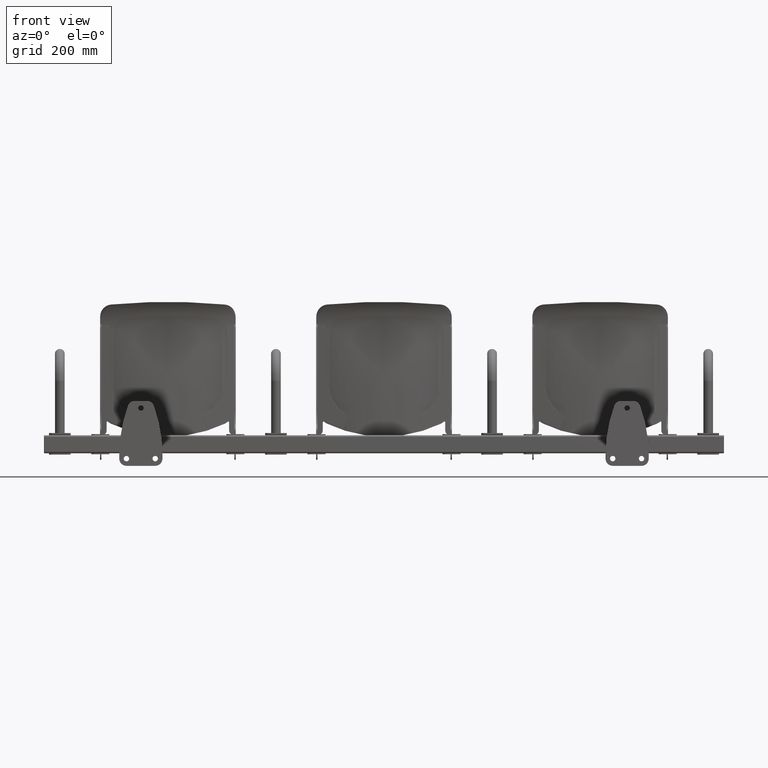
[diagram: clean part render]
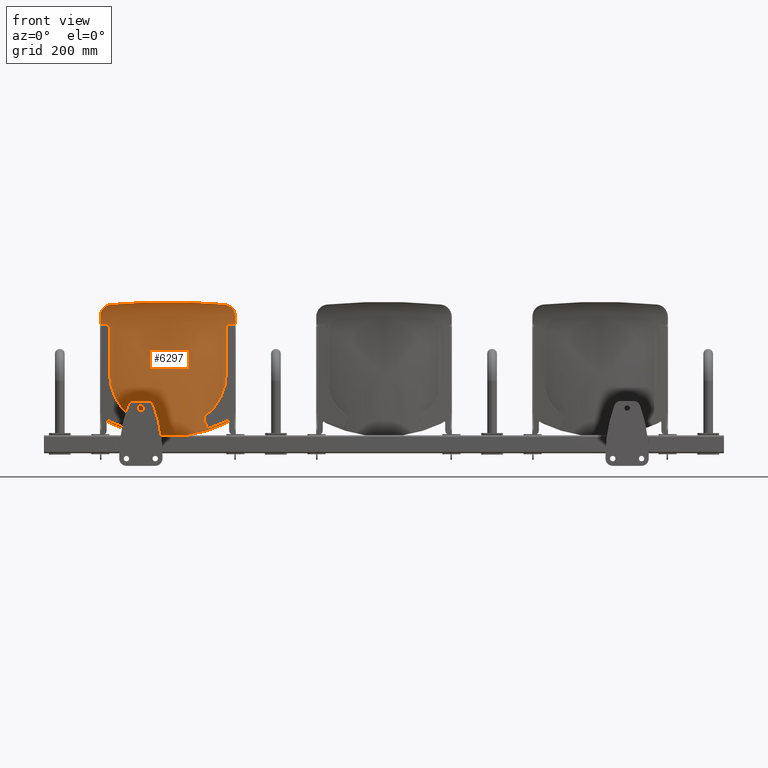
[diagram: same view with one face highlighted and labeled with its STEP entity id]
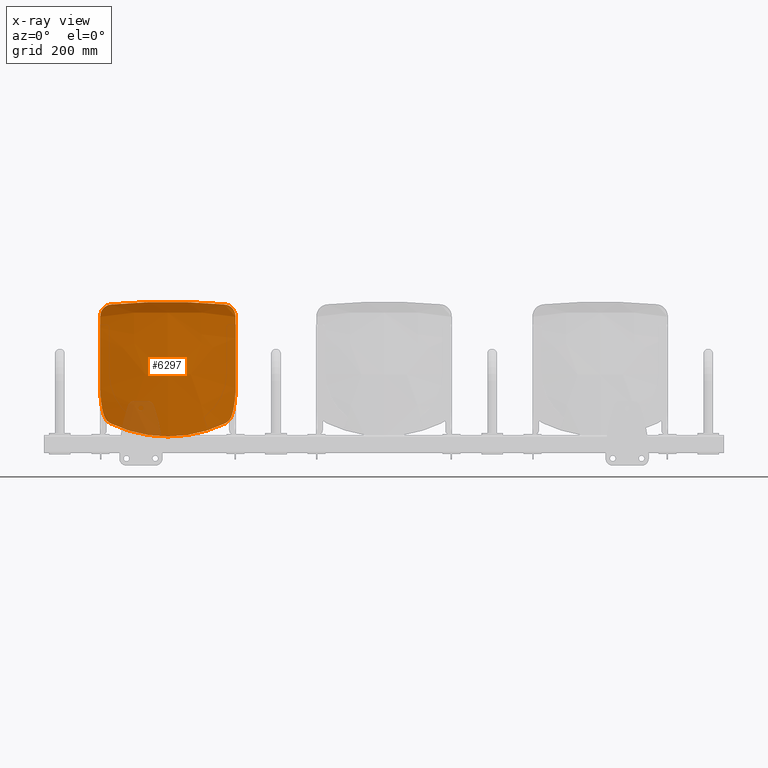
[diagram: x-ray of the same camera — body ghosted, the highlighted face saturated]
A machine part, front view. The second image highlights one B-rep face of the part: STEP entity #6297.
The next image is the same camera in x-ray: the body ghosted, the highlighted face saturated — about 6% of this face is hidden behind the body in this view.
In plain terms, the highlighted face is a freeform B-spline surface patch.
Its self-contained STEP definition (entity closure, byte-faithful):
#1601 = EDGE_CURVE ( 'NONE', #13343, #7302, #3231, .T. ) ;
#1611 = EDGE_CURVE ( 'NONE', #13367, #13426, #3223, .T. ) ;
#1630 = EDGE_CURVE ( 'NONE', #13343, #7221, #3250, .T. ) ;
#1631 = EDGE_CURVE ( 'NONE', #13451, #13396, #3275, .T. ) ;
#1632 = EDGE_CURVE ( 'NONE', #13493, #13451, #3257, .T. ) ;
#1633 = EDGE_CURVE ( 'NONE', #7209, #7276, #3242, .T. ) ;
#1634 = EDGE_CURVE ( 'NONE', #7297, #7209, #3237, .T. ) ;
#1635 = EDGE_CURVE ( 'NONE', #13426, #13402, #3251, .T. ) ;
#1636 = EDGE_CURVE ( 'NONE', #13369, #13367, #3255, .T. ) ;
#1637 = EDGE_CURVE ( 'NONE', #13421, #13369, #3224, .T. ) ;
#1705 = FACE_OUTER_BOUND ( 'NONE', #7882, .T. ) ;
#2507 = CARTESIAN_POINT ( 'NONE',  ( 177.5078859497257600, 0.8753604273275450400, 374.0000000000000000 ) ) ;
#2515 = CARTESIAN_POINT ( 'NONE',  ( 176.1929585820747900, 0.8748559993895200800, 359.4733192631504200 ) ) ;
#2516 = CARTESIAN_POINT ( 'NONE',  ( 173.9601769114353300, 0.8739994673240320000, 334.8066287048631000 ) ) ;
#2517 = CARTESIAN_POINT ( 'NONE',  ( 186.1897008547051900, 0.8786909154583509900, 301.8064929026464300 ) ) ;
#2518 = CARTESIAN_POINT ( 'NONE',  ( 189.9127170051849300, 0.8671052836387281900, 274.9985839518418500 ) ) ;
#2519 = CARTESIAN_POINT ( 'NONE',  ( 192.4592217056646200, 0.8601720507488726000, 241.6650823493227400 ) ) ;
#2520 = CARTESIAN_POINT ( 'NONE',  ( 191.4397810946273600, 0.7668710282595632100, 199.8982916209793900 ) ) ;
#2521 = CARTESIAN_POINT ( 'NONE',  ( 191.7960598742048400, 0.8355391045989448700, 150.0974369892213100 ) ) ;
#2522 = CARTESIAN_POINT ( 'NONE',  ( 191.7186074622944100, -0.2764991999811307600, 99.82918264297161700 ) ) ;
#2523 = CARTESIAN_POINT ( 'NONE',  ( 191.7405075052198200, 2.652635974002748300, 60.46496127421701800 ) ) ;
#2524 = CARTESIAN_POINT ( 'NONE',  ( 191.7592815000314500, -3.583402664253777300, 24.07905034312249600 ) ) ;
#2525 = CARTESIAN_POINT ( 'NONE',  ( 191.7566067534347100, -15.27858033161732000, 9.394089762111930100 ) ) ;
#2526 = CARTESIAN_POINT ( 'NONE',  ( 191.7548956960926600, -22.76008143507478800, 0.0000000000000000000 ) ) ;
#2527 = CARTESIAN_POINT ( 'NONE',  ( 176.3717772607787400, 0.5835736182183263200, 374.0000000000000000 ) ) ;
#2528 = CARTESIAN_POINT ( 'NONE',  ( 175.0655948374306100, 0.5832158408119442200, 359.4733192631504200 ) ) ;
#2529 = CARTESIAN_POINT ( 'NONE',  ( 172.8476623149879000, 0.5826083252526885700, 334.8066287048631000 ) ) ;
#2530 = CARTESIAN_POINT ( 'NONE',  ( 184.9958536247105500, 0.5859358454377217000, 301.8064929026464300 ) ) ;
#2531 = CARTESIAN_POINT ( 'NONE',  ( 188.6935843980153900, 0.5776382964780580900, 274.9985839518418500 ) ) ;
#2532 = CARTESIAN_POINT ( 'NONE',  ( 191.2224053028616600, 0.5757583974973408100, 241.6650823493227400 ) ) ;
#2533 = CARTESIAN_POINT ( 'NONE',  ( 190.2081116190174400, 0.4925833937555878000, 199.8982916209793900 ) ) ;
#2534 = CARTESIAN_POINT ( 'NONE',  ( 190.5535382328385500, 0.6253362953345876800, 150.0974369892213100 ) ) ;
#2535 = CARTESIAN_POINT ( 'NONE',  ( 190.4727912743064500, -0.4384474263613228900, 99.82918264297161700 ) ) ;
#2536 = CARTESIAN_POINT ( 'NONE',  ( 190.4942562141737300, 2.475951680061347900, 60.46496127421701800 ) ) ;
#2537 = CARTESIAN_POINT ( 'NONE',  ( 190.5060094861553400, -3.633895967981278100, 24.07905034312249600 ) ) ;
#2538 = CARTESIAN_POINT ( 'NONE',  ( 190.5043349877579100, -15.34705217028902500, 9.394089762111930100 ) ) ;
#2539 = CARTESIAN_POINT ( 'NONE',  ( 190.5032637973952500, -22.84005429004990300, 0.0000000000000000000 ) ) ;
#2540 = CARTESIAN_POINT ( 'NONE',  ( 175.2356685718317000, 0.2917868091091076500, 374.0000000000000000 ) ) ;
#2541 = CARTESIAN_POINT ( 'NONE',  ( 173.9382310927864500, 0.2915756822343684700, 359.4733192631504200 ) ) ;
#2542 = CARTESIAN_POINT ( 'NONE',  ( 171.7351477185404700, 0.2912171831813452600, 334.8066287048631000 ) ) ;
#2543 = CARTESIAN_POINT ( 'NONE',  ( 183.8020063947159000, 0.2931807754170923700, 301.8064929026464300 ) ) ;
#2544 = CARTESIAN_POINT ( 'NONE',  ( 187.4744517908458500, 0.2881713093173882100, 274.9985839518418500 ) ) ;
#2545 = CARTESIAN_POINT ( 'NONE',  ( 189.9855889000587000, 0.2913447442458089200, 241.6650823493227400 ) ) ;
#2546 = CARTESIAN_POINT ( 'NONE',  ( 188.9764421434075000, 0.2182957592516122900, 199.8982916209793900 ) ) ;
#2547 = CARTESIAN_POINT ( 'NONE',  ( 189.3110165914722500, 0.4151334860702304800, 150.0974369892213100 ) ) ;
#2548 = CARTESIAN_POINT ( 'NONE',  ( 189.2269750863184800, -0.6003956527415149600, 99.82918264297161700 ) ) ;
#2549 = CARTESIAN_POINT ( 'NONE',  ( 189.2480049231276700, 2.299267386119948000, 60.46496127421701800 ) ) ;
#2550 = CARTESIAN_POINT ( 'NONE',  ( 189.2527374722792500, -3.684389271708779400, 24.07905034312249600 ) ) ;
#2551 = CARTESIAN_POINT ( 'NONE',  ( 189.2520632220811500, -15.41552400896073200, 9.394089762111930100 ) ) ;
#2552 = CARTESIAN_POINT ( 'NONE',  ( 189.2516318986978100, -22.92002714502502100, 0.0000000000000000000 ) ) ;
#2553 = CARTESIAN_POINT ( 'NONE',  ( 174.0995598828846800, -1.110223024625156500E-013, 374.0000000000000000 ) ) ;
#2554 = CARTESIAN_POINT ( 'NONE',  ( 172.8108673481422700, -6.447634320732522800E-005, 359.4733192631504200 ) ) ;
#2555 = CARTESIAN_POINT ( 'NONE',  ( 170.6226331220930500, -0.0001739588899980785100, 334.8066287048631000 ) ) ;
#2556 = CARTESIAN_POINT ( 'NONE',  ( 182.6081591647212900, 0.0004257053964631438000, 301.8064929026464300 ) ) ;
#2557 = CARTESIAN_POINT ( 'NONE',  ( 186.2553191836763100, -0.001295677843281757200, 274.9985839518418500 ) ) ;
#2558 = CARTESIAN_POINT ( 'NONE',  ( 188.7487724972557400, 0.006931090994277090300, 241.6650823493227400 ) ) ;
#2559 = CARTESIAN_POINT ( 'NONE',  ( 187.7447726677975800, -0.05599187525236318900, 199.8982916209793900 ) ) ;
#2560 = CARTESIAN_POINT ( 'NONE',  ( 188.0684949501059600, 0.2049306768058733200, 150.0974369892213100 ) ) ;
#2561 = CARTESIAN_POINT ( 'NONE',  ( 187.9811588983305100, -0.7623438791217070900, 99.82918264297161700 ) ) ;
#2562 = CARTESIAN_POINT ( 'NONE',  ( 188.0017536320815700, 2.122583092178547600, 60.46496127421701800 ) ) ;
#2563 = CARTESIAN_POINT ( 'NONE',  ( 187.9994654584031700, -3.734882575436279800, 24.07905034312249600 ) ) ;
#2564 = CARTESIAN_POINT ( 'NONE',  ( 187.9997914564043800, -15.48399584763243700, 9.394089762111930100 ) ) ;
#2565 = CARTESIAN_POINT ( 'NONE',  ( 188.0000000000004000, -23.00000000000013500, 0.0000000000000000000 ) ) ;
#2566 = CARTESIAN_POINT ( 'NONE',  ( 159.8982012710469000, -3.647335113865344700, 374.0000000000000000 ) ) ;
#2567 = CARTESIAN_POINT ( 'NONE',  ( 158.7188205400902300, -3.645566458562905100, 359.4733192631504200 ) ) ;
#2568 = CARTESIAN_POINT ( 'NONE',  ( 156.7162006665000700, -3.642563234781790900, 334.8066287048631000 ) ) ;
#2569 = CARTESIAN_POINT ( 'NONE',  ( 167.6850687897883500, -3.659012669861402500, 301.8064929026464300 ) ) ;
#2570 = CARTESIAN_POINT ( 'NONE',  ( 171.0161615940570200, -3.619633017351657300, 274.9985839518418500 ) ) ;
#2571 = CARTESIAN_POINT ( 'NONE',  ( 173.2885674622187100, -3.548239574649871400, 241.6650823493227400 ) ) ;
#2572 = CARTESIAN_POINT ( 'NONE',  ( 172.3489042226735300, -3.484587306552057000, 199.8982916209793900 ) ) ;
#2573 = CARTESIAN_POINT ( 'NONE',  ( 172.5369744330273800, -2.422604438998591900, 150.0974369892213100 ) ) ;
#2574 = CARTESIAN_POINT ( 'NONE',  ( 172.4084565484807300, -2.786696708874108800, 99.82918264297161700 ) ) ;
#2575 = CARTESIAN_POINT ( 'NONE',  ( 172.4236124940054300, -0.08597058208895548600, 60.46496127421701800 ) ) ;
#2576 = CARTESIAN_POINT ( 'NONE',  ( 172.3335652849520700, -4.366048872030040300, 24.07905034312249600 ) ) ;
#2577 = CARTESIAN_POINT ( 'NONE',  ( 172.3463943854448000, -16.33989383102876000, 9.394089762111930100 ) ) ;
#2578 = CARTESIAN_POINT ( 'NONE',  ( 172.3546012662826300, -23.99966068718908500, 0.0000000000000000000 ) ) ;
#2579 = CARTESIAN_POINT ( 'NONE',  ( 131.2661867296943700, -10.04919731254429200, 373.9999999999999400 ) ) ;
#2580 = CARTESIAN_POINT ( 'NONE',  ( 130.3040063659523200, -10.04446371871665500, 359.4733192631504700 ) ) ;
#2581 = CARTESIAN_POINT ( 'NONE',  ( 128.6701984972711200, -10.03642595039985300, 334.8066287048633900 ) ) ;
#2582 = CARTESIAN_POINT ( 'NONE',  ( 137.6189876742342900, -10.08045089084672700, 301.8064929026458000 ) ) ;
#2583 = CARTESIAN_POINT ( 'NONE',  ( 140.3269722737867400, -9.967930088158283300, 274.9985839518410000 ) ) ;
#2584 = CARTESIAN_POINT ( 'NONE',  ( 142.1671555287220800, -9.784783360178227700, 241.6650823493235700 ) ) ;
#2585 = CARTESIAN_POINT ( 'NONE',  ( 141.3705573537303600, -9.497894769141405300, 199.8982916209793900 ) ) ;
#2586 = CARTESIAN_POINT ( 'NONE',  ( 141.3684417409841700, -7.026153528549451200, 150.0974369892216200 ) ) ;
#2587 = CARTESIAN_POINT ( 'NONE',  ( 141.1938418451059400, -6.332498669985498400, 99.82918264297175900 ) ) ;
#2588 = CARTESIAN_POINT ( 'NONE',  ( 141.2008759528551100, -3.953384559557231000, 60.46496127421701800 ) ) ;
#2589 = CARTESIAN_POINT ( 'NONE',  ( 141.0012136615009100, -5.470281062059452600, 24.07905034312242500 ) ) ;
#2590 = CARTESIAN_POINT ( 'NONE',  ( 141.0296597136018000, -17.83779882003101100, 9.394089762111903500 ) ) ;
#2591 = CARTESIAN_POINT ( 'NONE',  ( 141.0478568865080100, -25.74940139546693600, 0.0000000000000000000 ) ) ;
#2592 = CARTESIAN_POINT ( 'NONE',  ( 87.79981516145579700, -16.93549098640924600, 374.0000000000002800 ) ) ;
#2593 = CARTESIAN_POINT ( 'NONE',  ( 87.16018659354705300, -16.92792855668508200, 359.4733192631506400 ) ) ;
#2594 = CARTESIAN_POINT ( 'NONE',  ( 86.07408025978406800, -16.91508734971882100, 334.8066287048633900 ) ) ;
#2595 = CARTESIAN_POINT ( 'NONE',  ( 92.02296616670196300, -16.98542196869184200, 301.8064929026470500 ) ) ;
#2596 = CARTESIAN_POINT ( 'NONE',  ( 93.81680311281550600, -16.79279938955385600, 274.9985839518426500 ) ) ;
#2597 = CARTESIAN_POINT ( 'NONE',  ( 95.03105943927278100, -16.48818535828565100, 241.6650823493222000 ) ) ;
#2598 = CARTESIAN_POINT ( 'NONE',  ( 94.48172396632792000, -15.95964248455616300, 199.8982916209796200 ) ) ;
#2599 = CARTESIAN_POINT ( 'NONE',  ( 94.37788691049731000, -11.96616637480895300, 150.0974369892206800 ) ) ;
#2600 = CARTESIAN_POINT ( 'NONE',  ( 94.21596740861112100, -10.13610858689393600, 99.82918264297163100 ) ) ;
#2601 = CARTESIAN_POINT ( 'NONE',  ( 94.21711623271282600, -8.100523834156163600, 60.46496127421708200 ) ) ;
#2602 = CARTESIAN_POINT ( 'NONE',  ( 94.00147219792437200, -6.652947047398322800, 24.07905034312255700 ) ) ;
#2603 = CARTESIAN_POINT ( 'NONE',  ( 94.03219518225523600, -19.44281577140797200, 9.394089762111953200 ) ) ;
#2604 = CARTESIAN_POINT ( 'NONE',  ( 94.05184892738940100, -27.62459972487273100, 0.0000000000000000000 ) ) ;
#2605 = CARTESIAN_POINT ( 'NONE',  ( 43.98675412974044000, -21.07821725085221600, 373.9999999999994300 ) ) ;
#2606 = CARTESIAN_POINT ( 'NONE',  ( 43.66749001821980200, -21.06909804852173100, 359.4733192631499600 ) ) ;
#2607 = CARTESIAN_POINT ( 'NONE',  ( 43.12537105877513000, -21.05361340023219400, 334.8066287048629900 ) ) ;
#2608 = CARTESIAN_POINT ( 'NONE',  ( 46.09469711595767200, -21.13842683250824800, 301.8064929026463100 ) ) ;
#2609 = CARTESIAN_POINT ( 'NONE',  ( 46.98815794703518400, -20.89704230365081700, 274.9985839518411700 ) ) ;
#2610 = CARTESIAN_POINT ( 'NONE',  ( 47.59151520274323800, -20.51884905074953400, 241.6650823493232000 ) ) ;
#2611 = CARTESIAN_POINT ( 'NONE',  ( 47.31135019484687400, -19.84431566015828400, 199.8982916209791100 ) ) ;
#2612 = CARTESIAN_POINT ( 'NONE',  ( 47.22864401855365200, -14.93325044084706700, 150.0974369892218500 ) ) ;
#2613 = CARTESIAN_POINT ( 'NONE',  ( 47.13401870486706700, -12.42010151494119600, 99.82918264297163100 ) ) ;
#2614 = CARTESIAN_POINT ( 'NONE',  ( 47.13352537934614600, -10.59020911032147800, 60.46496127421701800 ) ) ;
#2615 = CARTESIAN_POINT ( 'NONE',  ( 47.00093352157590900, -7.362369461196079700, 24.07905034312243900 ) ) ;
#2616 = CARTESIAN_POINT ( 'NONE',  ( 47.01982399342549000, -20.40587371042583300, 9.394089762111905300 ) ) ;
#2617 = CARTESIAN_POINT ( 'NONE',  ( 47.03190838324900400, -28.74991039025195100, 0.0000000000000000000 ) ) ;
#2618 = CARTESIAN_POINT ( 'NONE',  ( 14.66225220949522000, -22.00000000000002500, 373.9999999999999400 ) ) ;
#2619 = CARTESIAN_POINT ( 'NONE',  ( 14.55583085501892200, -21.99054997315610300, 359.4733192631504200 ) ) ;
#2620 = CARTESIAN_POINT ( 'NONE',  ( 14.37512456242438000, -21.97450357603696600, 334.8066287048631000 ) ) ;
#2621 = CARTESIAN_POINT ( 'NONE',  ( 15.36489976572564100, -22.06239385225708100, 301.8064929026463700 ) ) ;
#2622 = CARTESIAN_POINT ( 'NONE',  ( 15.66271997199650900, -21.81009793963124800, 274.9985839518418500 ) ) ;
#2623 = CARTESIAN_POINT ( 'NONE',  ( 15.86383899043085300, -21.41547858856280600, 241.6650823493227400 ) ) ;
#2624 = CARTESIAN_POINT ( 'NONE',  ( 15.77045055697225500, -20.70839552231908000, 199.8982916209793900 ) ) ;
#2625 = CARTESIAN_POINT ( 'NONE',  ( 15.74288147546312700, -15.59293277903757500, 150.0974369892213100 ) ) ;
#2626 = CARTESIAN_POINT ( 'NONE',  ( 15.71133964592019800, -12.92785167479971300, 99.82918264297161700 ) ) ;
#2627 = CARTESIAN_POINT ( 'NONE',  ( 15.71117517316967000, -11.14362298375914900, 60.46496127421701800 ) ) ;
#2628 = CARTESIAN_POINT ( 'NONE',  ( 15.66697783122310200, -7.519999861654865100, 24.07905034312249600 ) ) ;
#2629 = CARTESIAN_POINT ( 'NONE',  ( 15.67327466315477500, -20.61989171024679400, 9.394089762111930100 ) ) ;
#2630 = CARTESIAN_POINT ( 'NONE',  ( 15.67730279820198000, -29.00000000000036600, 0.0000000000000000000 ) ) ;
#2631 = CARTESIAN_POINT ( 'NONE',  ( -14.66225220949562000, -22.00000000000001400, 373.9999999999999400 ) ) ;
#2632 = CARTESIAN_POINT ( 'NONE',  ( -14.55583085501935700, -21.99054997315608900, 359.4733192631504200 ) ) ;
#2633 = CARTESIAN_POINT ( 'NONE',  ( -14.37512456242488100, -21.97450357603695500, 334.8066287048631000 ) ) ;
#2634 = CARTESIAN_POINT ( 'NONE',  ( -15.36489976572581100, -22.06239385225707400, 301.8064929026463700 ) ) ;
#2635 = CARTESIAN_POINT ( 'NONE',  ( -15.66271997199705100, -21.81009793963124100, 274.9985839518418500 ) ) ;
#2636 = CARTESIAN_POINT ( 'NONE',  ( -15.86383899043136700, -21.41547858856279200, 241.6650823493227400 ) ) ;
#2637 = CARTESIAN_POINT ( 'NONE',  ( -15.77045055697240100, -20.70839552231908000, 199.8982916209793900 ) ) ;
#2638 = CARTESIAN_POINT ( 'NONE',  ( -15.74288147546393200, -15.59293277903756100, 150.0974369892213100 ) ) ;
#2639 = CARTESIAN_POINT ( 'NONE',  ( -15.71133964592087700, -12.92785167479971300, 99.82918264297161700 ) ) ;
#2640 = CARTESIAN_POINT ( 'NONE',  ( -15.71117517316924000, -11.14362298375913500, 60.46496127421701800 ) ) ;
#2641 = CARTESIAN_POINT ( 'NONE',  ( -15.66697783122571200, -7.519999861654861600, 24.07905034312249600 ) ) ;
#2642 = CARTESIAN_POINT ( 'NONE',  ( -15.67327466315645300, -20.61989171024678700, 9.394089762111930100 ) ) ;
#2643 = CARTESIAN_POINT ( 'NONE',  ( -15.67730279820306400, -29.00000000000035200, 0.0000000000000000000 ) ) ;
#2644 = CARTESIAN_POINT ( 'NONE',  ( -43.98675412974078800, -21.07821725085217700, 373.9999999999999400 ) ) ;
#2645 = CARTESIAN_POINT ( 'NONE',  ( -43.66749001822022800, -21.06909804852168500, 359.4733192631498500 ) ) ;
#2646 = CARTESIAN_POINT ( 'NONE',  ( -43.12537105877566300, -21.05361340023213800, 334.8066287048618500 ) ) ;
#2647 = CARTESIAN_POINT ( 'NONE',  ( -46.09469711595758700, -21.13842683250824100, 301.8064929026471600 ) ) ;
#2648 = CARTESIAN_POINT ( 'NONE',  ( -46.98815794703578100, -20.89704230365082100, 274.9985839518413400 ) ) ;
#2649 = CARTESIAN_POINT ( 'NONE',  ( -47.59151520274313900, -20.51884905074954400, 241.6650823493247100 ) ) ;
#2650 = CARTESIAN_POINT ( 'NONE',  ( -47.31135019484753500, -19.84431566015816600, 199.8982916209793900 ) ) ;
#2651 = CARTESIAN_POINT ( 'NONE',  ( -47.22864401855419900, -14.93325044084704300, 150.0974369892211400 ) ) ;
#2652 = CARTESIAN_POINT ( 'NONE',  ( -47.13401870486762800, -12.42010151494114800, 99.82918264297190100 ) ) ;
#2653 = CARTESIAN_POINT ( 'NONE',  ( -47.13352537934596900, -10.59020911032149000, 60.46496127421683300 ) ) ;
#2654 = CARTESIAN_POINT ( 'NONE',  ( -47.00093352157836800, -7.362369461196052200, 24.07905034312249600 ) ) ;
#2655 = CARTESIAN_POINT ( 'NONE',  ( -47.01982399342716000, -20.40587371042585100, 9.394089762111930100 ) ) ;
#2656 = CARTESIAN_POINT ( 'NONE',  ( -47.03190838325015500, -28.74991039025200500, 0.0000000000000000000 ) ) ;
#2657 = CARTESIAN_POINT ( 'NONE',  ( -87.79981516145629400, -16.93549098640921700, 374.0000000000001100 ) ) ;
#2658 = CARTESIAN_POINT ( 'NONE',  ( -87.16018659354762100, -16.92792855668506400, 359.4733192631511000 ) ) ;
#2659 = CARTESIAN_POINT ( 'NONE',  ( -86.07408025978472200, -16.91508734971882400, 334.8066287048646400 ) ) ;
#2660 = CARTESIAN_POINT ( 'NONE',  ( -92.02296616670217600, -16.98542196869173200, 301.8064929026459700 ) ) ;
#2661 = CARTESIAN_POINT ( 'NONE',  ( -93.81680311281608900, -16.79279938955388800, 274.9985839518421400 ) ) ;
#2662 = CARTESIAN_POINT ( 'NONE',  ( -95.03105943927376100, -16.48818535828548100, 241.6650823493212400 ) ) ;
#2663 = CARTESIAN_POINT ( 'NONE',  ( -94.48172396632753600, -15.95964248455619000, 199.8982916209793900 ) ) ;
#2664 = CARTESIAN_POINT ( 'NONE',  ( -94.37788691049816200, -11.96616637480887500, 150.0974369892215100 ) ) ;
#2665 = CARTESIAN_POINT ( 'NONE',  ( -94.21596740861210200, -10.13610858689398600, 99.82918264297134700 ) ) ;
#2666 = CARTESIAN_POINT ( 'NONE',  ( -94.21711623271185900, -8.100523834156119200, 60.46496127421724500 ) ) ;
#2667 = CARTESIAN_POINT ( 'NONE',  ( -94.00147219792728500, -6.652947047398350300, 24.07905034312247100 ) ) ;
#2668 = CARTESIAN_POINT ( 'NONE',  ( -94.03219518225698400, -19.44281577140794000, 9.394089762111921300 ) ) ;
#2669 = CARTESIAN_POINT ( 'NONE',  ( -94.05184892739039500, -27.62459972487266700, 0.0000000000000000000 ) ) ;
#2670 = CARTESIAN_POINT ( 'NONE',  ( -131.2661867296945100, -10.04919731254418200, 373.9999999999996600 ) ) ;
#2671 = CARTESIAN_POINT ( 'NONE',  ( -130.3040063659524300, -10.04446371871654100, 359.4733192631498500 ) ) ;
#2672 = CARTESIAN_POINT ( 'NONE',  ( -128.6701984972711400, -10.03642595039973500, 334.8066287048620800 ) ) ;
#2673 = CARTESIAN_POINT ( 'NONE',  ( -137.6189876742346300, -10.08045089084664200, 301.8064929026466000 ) ) ;
#2674 = CARTESIAN_POINT ( 'NONE',  ( -140.3269722737870200, -9.967930088158297500, 274.9985839518416800 ) ) ;
#2675 = CARTESIAN_POINT ( 'NONE',  ( -142.1671555287224500, -9.784783360178121100, 241.6650823493235100 ) ) ;
#2676 = CARTESIAN_POINT ( 'NONE',  ( -141.3705573537313300, -9.497894769141300500, 199.8982916209792200 ) ) ;
#2677 = CARTESIAN_POINT ( 'NONE',  ( -141.3684417409835100, -7.026153528549373900, 150.0974369892211100 ) ) ;
#2678 = CARTESIAN_POINT ( 'NONE',  ( -141.1938418451068700, -6.332498669985526800, 99.82918264297185800 ) ) ;
#2679 = CARTESIAN_POINT ( 'NONE',  ( -141.2008759528551400, -3.953384559557259900, 60.46496127421686900 ) ) ;
#2680 = CARTESIAN_POINT ( 'NONE',  ( -141.0012136615033900, -5.470281062059445500, 24.07905034312253500 ) ) ;
#2681 = CARTESIAN_POINT ( 'NONE',  ( -141.0296597136034200, -17.83779882003105800, 9.394089762111947900 ) ) ;
#2682 = CARTESIAN_POINT ( 'NONE',  ( -141.0478568865091200, -25.74940139546702200, 0.0000000000000000000 ) ) ;
#2683 = CARTESIAN_POINT ( 'NONE',  ( -159.8982012710472700, -3.647335113865242100, 373.9999999999999400 ) ) ;
#2684 = CARTESIAN_POINT ( 'NONE',  ( -158.7188205400906000, -3.645566458562811400, 359.4733192631504200 ) ) ;
#2685 = CARTESIAN_POINT ( 'NONE',  ( -156.7162006665004700, -3.642563234781712300, 334.8066287048631000 ) ) ;
#2686 = CARTESIAN_POINT ( 'NONE',  ( -167.6850687897885200, -3.659012669861239100, 301.8064929026463700 ) ) ;
#2687 = CARTESIAN_POINT ( 'NONE',  ( -171.0161615940575600, -3.619633017351735900, 274.9985839518418500 ) ) ;
#2688 = CARTESIAN_POINT ( 'NONE',  ( -173.2885674622192200, -3.548239574649667500, 241.6650823493227400 ) ) ;
#2689 = CARTESIAN_POINT ( 'NONE',  ( -172.3489042226739800, -3.484587306551968600, 199.8982916209793900 ) ) ;
#2690 = CARTESIAN_POINT ( 'NONE',  ( -172.5369744330267600, -2.422604438998568800, 150.0974369892213100 ) ) ;
#2691 = CARTESIAN_POINT ( 'NONE',  ( -172.4084565484817500, -2.786696708874123000, 99.82918264297161700 ) ) ;
#2692 = CARTESIAN_POINT ( 'NONE',  ( -172.4236124940049400, -0.08597058208896167500, 60.46496127421701800 ) ) ;
#2693 = CARTESIAN_POINT ( 'NONE',  ( -172.3335652849546000, -4.366048872030049200, 24.07905034312249600 ) ) ;
#2694 = CARTESIAN_POINT ( 'NONE',  ( -172.3463943854464400, -16.33989383102876800, 9.394089762111930100 ) ) ;
#2695 = CARTESIAN_POINT ( 'NONE',  ( -172.3546012662836800, -23.99966068718908500, -0.0000000000000000000 ) ) ;
#2696 = CARTESIAN_POINT ( 'NONE',  ( -174.0995598828850500, 0.0000000000000000000, 374.0000000000000000 ) ) ;
#2697 = CARTESIAN_POINT ( 'NONE',  ( -172.8108673481427200, -6.447634310551964700E-005, 359.4733192631504200 ) ) ;
#2698 = CARTESIAN_POINT ( 'NONE',  ( -170.6226331220935300, -0.0001739588899119231900, 334.8066287048631000 ) ) ;
#2699 = CARTESIAN_POINT ( 'NONE',  ( -182.6081591647214900, 0.0004257053966350196600, 301.8064929026464300 ) ) ;
#2700 = CARTESIAN_POINT ( 'NONE',  ( -186.2553191836767900, -0.001295677843355948700, 274.9985839518418500 ) ) ;
#2701 = CARTESIAN_POINT ( 'NONE',  ( -188.7487724972562300, 0.006931090994490505600, 241.6650823493227400 ) ) ;
#2702 = CARTESIAN_POINT ( 'NONE',  ( -187.7447726677981700, -0.05599187525224731700, 199.8982916209793900 ) ) ;
#2703 = CARTESIAN_POINT ( 'NONE',  ( -188.0684949501051600, 0.2049306768058422600, 150.0974369892213100 ) ) ;
#2704 = CARTESIAN_POINT ( 'NONE',  ( -187.9811588983315300, -0.7623438791216985400, 99.82918264297161700 ) ) ;
#2705 = CARTESIAN_POINT ( 'NONE',  ( -188.0017536320811500, 2.122583092178546700, 60.46496127421701800 ) ) ;
#2706 = CARTESIAN_POINT ( 'NONE',  ( -187.9994654584057200, -3.734882575436279800, 24.07905034312249600 ) ) ;
#2707 = CARTESIAN_POINT ( 'NONE',  ( -187.9997914564060600, -15.48399584763243700, 9.394089762111930100 ) ) ;
#2708 = CARTESIAN_POINT ( 'NONE',  ( -188.0000000000014800, -23.00000000000013500, 0.0000000000000000000 ) ) ;
#3132 = CARTESIAN_POINT ( 'NONE',  ( -188.0000000448795300, 0.6715539034214228500, 78.51102995050034400 ) ) ;
#3220 = B_SPLINE_CURVE_WITH_KNOTS ( 'NONE', 3,
 ( #4230, #4218, #4225, #4231 ),
 .UNSPECIFIED., .F., .F.,
 ( 4, 4 ),
 ( 0.03445279691215157700, 0.05969954567152369700 ),
 .UNSPECIFIED. ) ;
#3223 = B_SPLINE_CURVE_WITH_KNOTS ( 'NONE', 3,
 ( #9362, #9363, #9380, #9381, #9382, #9383, #9384, #9385, #9386, #9387, #9388, #9389, #9390, #9391, #9392, #9393, #9394, #9395 ),
 .UNSPECIFIED., .F., .F.,
 ( 4, 2, 2, 2, 2, 2, 2, 2, 4 ),
 ( 0.1820326604431127000, 0.2231594277522714300, 0.2334411195795611200, 0.2437228114068508100, 0.2642861950614301400, 0.2848495787160095800, 0.3054129623705889000, 0.3259763460251683400, 0.3465397296797477200 ),
 .UNSPECIFIED. ) ;
#3224 = B_SPLINE_CURVE_WITH_KNOTS ( 'NONE', 3,
 ( #7405, #7424, #7445, #7446, #7447, #7448, #7449, #7450, #7451, #7452, #7453, #7454, #7455, #7456, #7457, #16122, #16123, #16124 ),
 .UNSPECIFIED., .F., .F.,
 ( 4, 2, 2, 2, 2, 2, 2, 2, 4 ),
 ( 0.0000000000000000000, 0.007757990828395534700, 0.01163698624259330300, 0.01357648394969211700, 0.01551598165679093100, 0.02327397248518590600, 0.02521347019228468600, 0.02715296789938346400, 0.03103196331358108400 ),
 .UNSPECIFIED. ) ;
#3227 = B_SPLINE_CURVE_WITH_KNOTS ( 'NONE', 3,
 ( #4226, #4214, #4235, #4236 ),
 .UNSPECIFIED., .F., .F.,
 ( 4, 4 ),
 ( 0.7390416898494063200, 0.7393860156629057400 ),
 .UNSPECIFIED. ) ;
#3231 = B_SPLINE_CURVE_WITH_KNOTS ( 'NONE', 3,
 ( #9644, #9639, #9640, #9645, #9646, #9647, #9648, #9649, #9650, #9651, #9652, #9653, #4972, #3132, #9468, #9469, #9470, #9471, #9472, #9473, #9474, #9475, #9476, #9477, #9478, #9479, #9480, #9481, #9482, #9483, #9484, #9485, #9486, #9487, #9488, #9489, #9490, #9491, #9492, #9493, #9494, #9495 ),
 .UNSPECIFIED., .F., .F.,
 ( 4, 2, 2, 2, 2, 2, 1, 2, 2, 1, 1, 2, 2, 2, 2, 2, 1, 2, 2, 2, 2, 2, 4 ),
 ( 0.3418074902021571200, 0.3829445220645491000, 0.4240815539269411300, 0.4652185857893331700, 0.4857871017205291900, 0.4960713596861270900, 0.4986424241775266300, 0.4999279564232263500, 0.5002493394846512200, 0.5005707225460760400, 0.5012134886689253400, 0.5063556176517195500, 0.5886296813764296800, 0.6709037451011399300, 0.7120407769634949900, 0.7326092928946724700, 0.7428935508602612100, 0.7480356798430554100, 0.7506067443344528500, 0.7531778088258500600, 0.8354518725505669700, 0.9177259362752836500, 1.000000000000000000 ),
 .UNSPECIFIED. ) ;
#3237 = B_SPLINE_CURVE_WITH_KNOTS ( 'NONE', 3,
 ( #7393, #7398, #7403, #7404 ),
 .UNSPECIFIED., .F., .F.,
 ( 4, 4 ),
 ( 0.03142580853323429000, 0.05667964773468131500 ),
 .UNSPECIFIED. ) ;
#3240 = B_SPLINE_CURVE_WITH_KNOTS ( 'NONE', 3,
 ( #4237, #4232, #4234, #4239 ),
 .UNSPECIFIED., .F., .F.,
 ( 4, 4 ),
 ( 0.0000000000000000000, 0.009223176487255060500 ),
 .UNSPECIFIED. ) ;
#3241 = B_SPLINE_CURVE_WITH_KNOTS ( 'NONE', 3,
 ( #4250, #4251, #4282, #4283, #4284, #4285, #4286, #4287, #4288, #4289, #4290, #4291, #4292, #4293, #4294, #4295, #4296, #4297, #4298, #4299, #4300, #4301 ),
 .UNSPECIFIED., .F., .F.,
 ( 4, 2, 2, 2, 2, 2, 2, 2, 2, 2, 4 ),
 ( 0.03079469900314655100, 0.07027660330751274400, 0.1097585076118789400, 0.1492404119162451000, 0.1689813640684281700, 0.1887223162206112500, 0.2282042205249774400, 0.2676861248293435600, 0.2874270769815267000, 0.3071680291337097700, 0.3466499334380759300 ),
 .UNSPECIFIED. ) ;
#3242 = B_SPLINE_CURVE_WITH_KNOTS ( 'NONE', 3,
 ( #7397, #7392, #7394, #7399 ),
 .UNSPECIFIED., .F., .F.,
 ( 4, 4 ),
 ( 0.2606139843371838600, 0.2609583101506876600 ),
 .UNSPECIFIED. ) ;
#3248 = B_SPLINE_CURVE_WITH_KNOTS ( 'NONE', 3,
 ( #4233, #4238, #4243, #4244 ),
 .UNSPECIFIED., .F., .F.,
 ( 4, 4 ),
 ( 0.0000000000000000000, 0.04057401022467249000 ),
 .UNSPECIFIED. ) ;
#3250 = B_SPLINE_CURVE_WITH_KNOTS ( 'NONE', 3,
 ( #7363, #7327, #7365, #7366, #7367, #7368, #7369, #7370, #7371, #7372, #7373, #7374, #7375, #7376, #7377, #7378, #7379, #7380, #7381, #7382, #7383, #7384, #7385, #7386, #7387, #7388 ),
 .UNSPECIFIED., .F., .F.,
 ( 4, 2, 2, 2, 2, 2, 2, 2, 2, 2, 2, 2, 4 ),
 ( 0.0000000000000000000, 0.006654779715465479000, 0.009982169573198211900, 0.01330955943093095300, 0.01996433914639642700, 0.02329172900412918400, 0.02661911886186194400, 0.03327389857732741100, 0.03493759350619379800, 0.03660128843506019200, 0.03992867829279303500, 0.04658345800825865200, 0.05323823772372426900 ),
 .UNSPECIFIED. ) ;
#3251 = B_SPLINE_CURVE_WITH_KNOTS ( 'NONE', 3,
 ( #7400, #7402, #7407, #7408, #7409, #7410, #7411, #7412, #7413, #7414, #7415, #7416, #7417, #7418, #7419, #7420, #7421, #7422 ),
 .UNSPECIFIED., .F., .F.,
 ( 4, 2, 2, 2, 2, 2, 2, 2, 4 ),
 ( 0.0000000000000000000, 0.007756980139294334000, 0.01163547020894155000, 0.01357471524376515800, 0.01551396027858876700, 0.02327094041788309700, 0.02521018545270674300, 0.02714943048753038600, 0.03102792055717767900 ),
 .UNSPECIFIED. ) ;
#3254 = B_SPLINE_CURVE_WITH_KNOTS ( 'NONE', 3,
 ( #4326, #4325, #4331, #4332, #4333 ),
 .UNSPECIFIED., .F., .F.,
 ( 4, 1, 4 ),
 ( 0.6731215835413418800, 0.6735701963757831900, 0.7390416898494063200 ),
 .UNSPECIFIED. ) ;
#3255 = B_SPLINE_CURVE_WITH_KNOTS ( 'NONE', 3,
 ( #7401, #7406, #7425, #7426, #7427, #7428, #7429, #7430, #7431, #7432, #7433, #7434, #7435, #7436, #7437, #7438, #7439, #7440, #7441, #7442 ),
 .UNSPECIFIED., .F., .F.,
 ( 4, 2, 2, 2, 2, 2, 2, 2, 2, 4 ),
 ( 0.01747894250387419700, 0.03804815724627905200, 0.05861737198868390000, 0.07918658673108874800, 0.09975580147349361000, 0.1203250162158984400, 0.1254673199014996200, 0.1306096235871008500, 0.1408942309583032200, 0.1820326604431127000 ),
 .UNSPECIFIED. ) ;
#3257 = B_SPLINE_CURVE_WITH_KNOTS ( 'NONE', 3,
 ( #7364, #7390, #7395, #7396 ),
 .UNSPECIFIED., .F., .F.,
 ( 4, 4 ),
 ( 0.0001705772843669340700, 0.009427266619147806100 ),
 .UNSPECIFIED. ) ;
#3260 = B_SPLINE_CURVE_WITH_KNOTS ( 'NONE', 3,
 ( #4241, #4246, #4252, #4253, #4254, #4255, #4256, #4257, #4258, #4259, #4260, #4261, #4262, #4263, #4264, #4265, #4266, #4267, #4268, #4269, #4270, #4271, #4272, #4273, #4274, #4275, #4276, #4277, #4278, #4279 ),
 .UNSPECIFIED., .F., .F.,
 ( 4, 2, 2, 2, 2, 2, 2, 2, 2, 2, 2, 2, 2, 2, 4 ),
 ( 0.0000000000000000000, 0.006655776765280109600, 0.009983665147920161400, 0.01164760933924015100, 0.01331155353056014300, 0.01996733029584004200, 0.02163127448716000200, 0.02329521867847996300, 0.02662310706111983100, 0.02995099544375970400, 0.03161493963507963600, 0.03327888382639956200, 0.03993466059167928600, 0.04659043735695900200, 0.05324621412223872600 ),
 .UNSPECIFIED. ) ;
#3266 = B_SPLINE_CURVE_WITH_KNOTS ( 'NONE', 3,
 ( #4245, #4240, #4242, #4247, #4248, #4249 ),
 .UNSPECIFIED., .F., .F.,
 ( 4, 2, 4 ),
 ( 0.1065604945434725600, 0.1317286419521295800, 0.1568967893607865800 ),
 .UNSPECIFIED. ) ;
#3267 = B_SPLINE_CURVE_WITH_KNOTS ( 'NONE', 3,
 ( #4302, #4303, #4312, #4313, #4314 ),
 .UNSPECIFIED., .F., .F.,
 ( 4, 1, 4 ),
 ( 0.4098273238912484900, 0.4098461384073759900, 0.5418886412939554200 ),
 .UNSPECIFIED. ) ;
#3269 = B_SPLINE_CURVE_WITH_KNOTS ( 'NONE', 3,
 ( #4335, #4334, #4350, #4351 ),
 .UNSPECIFIED., .F., .F.,
 ( 4, 4 ),
 ( 0.8051992016779040400, 0.8449645817332793700 ),
 .UNSPECIFIED. ) ;
#3275 = B_SPLINE_CURVE_WITH_KNOTS ( 'NONE', 3,
 ( #7389, #7326, #7362, #7391 ),
 .UNSPECIFIED., .F., .F.,
 ( 4, 4 ),
 ( 0.0000000000000000000, 0.04057401022478195800 ),
 .UNSPECIFIED. ) ;
#3507 = CARTESIAN_POINT ( 'NONE',  ( 188.0001262323120000, 2.540896979221925500E-005, 199.9999623146956900 ) ) ;
#3516 = CARTESIAN_POINT ( 'NONE',  ( -188.0012035646784600, -1.083772762154606900, 41.68685205327145100 ) ) ;
#3533 = CARTESIAN_POINT ( 'NONE',  ( 188.0000000000000900, -0.03623408467451350000, 240.5739880507189800 ) ) ;
#3540 = CARTESIAN_POINT ( 'NONE',  ( 2.382764116475699000E-011, -22.00000000000002100, 373.9999999999998900 ) ) ;
#3542 = CARTESIAN_POINT ( 'NONE',  ( 158.6470069993035000, -3.560112624779372000, 338.2107555783605300 ) ) ;
#3551 = CARTESIAN_POINT ( 'NONE',  ( 188.0002311657103500, -1.073385786359298800, 41.69001669799595100 ) ) ;
#3564 = CARTESIAN_POINT ( 'NONE',  ( 187.9999993862942600, 0.0001307344555900622300, 99.99602941533406400 ) ) ;
#3568 = CARTESIAN_POINT ( 'NONE',  ( 188.0000055521279000, -6.042561700549464800E-005, 149.9928624707747500 ) ) ;
#3569 = CARTESIAN_POINT ( 'NONE',  ( -188.0001262463933400, 2.541450085343506500E-005, 199.9999624081456500 ) ) ;
#3575 = CARTESIAN_POINT ( 'NONE',  ( -177.8472204401220400, 0.0001370729932983181300, 315.1059132242442000 ) ) ;
#3587 = CARTESIAN_POINT ( 'NONE',  ( 186.0148617918831100, 0.0001889755163675522900, 274.8693296845450500 ) ) ;
#3594 = CARTESIAN_POINT ( 'NONE',  ( 177.8472204401215900, 0.0001370729931676992200, 315.1059132242447700 ) ) ;
#3599 = CARTESIAN_POINT ( 'NONE',  ( -158.6470069993034700, -3.560112624779366200, 338.2107555783606500 ) ) ;
#3602 = CARTESIAN_POINT ( 'NONE',  ( 182.0028732582690900, -6.420261101590939700E-005, 299.9859136392646500 ) ) ;
#3612 = CARTESIAN_POINT ( 'NONE',  ( 186.0003693703419300, 4.691400543098348600E-006, 275.0000391426918900 ) ) ;
#3624 = CARTESIAN_POINT ( 'NONE',  ( -188.0000000000000300, -0.03623408467448574500, 240.5739880507189200 ) ) ;
#3655 = CARTESIAN_POINT ( 'NONE',  ( 187.8563218329319100, -0.0002953781440819693900, 249.8295040933976200 ) ) ;
#3666 = CARTESIAN_POINT ( 'NONE',  ( -187.8563218026024500, -0.0002953768531733703600, 249.8295049315200100 ) ) ;
#3928 = CARTESIAN_POINT ( 'NONE',  ( -180.8017965757545100, 0.0001361541687744595600, 305.0260064022712600 ) ) ;
#3929 = CARTESIAN_POINT ( 'NONE',  ( -182.0044438124056400, -5.044486144380701400E-007, 299.9813643962091300 ) ) ;
#3930 = CARTESIAN_POINT ( 'NONE',  ( -182.0059755496060900, -0.0001199722734308324300, 299.9718825208765900 ) ) ;
#3931 = CARTESIAN_POINT ( 'NONE',  ( -186.8850598177102100, 0.0007819467228910065500, 266.5798535911614000 ) ) ;
#3932 = CARTESIAN_POINT ( 'NONE',  ( -186.0148617918872600, 0.0001889755164516759900, 274.8693296845094100 ) ) ;
#3947 = CARTESIAN_POINT ( 'NONE',  ( -187.5078606923417500, 0.002815993890930275900, 258.2347500899748000 ) ) ;
#3948 = CARTESIAN_POINT ( 'NONE',  ( -187.8552697417543100, -3.862708878254785000E-005, 249.8863725735428100 ) ) ;
#3949 = CARTESIAN_POINT ( 'NONE',  ( -187.8563218026024500, -0.0002953768531733703600, 249.8295049315200100 ) ) ;
#3950 = CARTESIAN_POINT ( 'NONE',  ( -188.0001262463933400, 2.541450085343506500E-005, 199.9999624081456500 ) ) ;
#3951 = CARTESIAN_POINT ( 'NONE',  ( -187.8525334123356200, 0.03086408126679122300, 183.3205721773864200 ) ) ;
#3962 = CARTESIAN_POINT ( 'NONE',  ( -187.9606046966044300, 0.1179701345371578800, 166.6950656131827200 ) ) ;
#3963 = CARTESIAN_POINT ( 'NONE',  ( -188.0000112297362000, -3.361936279219827900E-005, 149.9952416192824100 ) ) ;
#3964 = CARTESIAN_POINT ( 'NONE',  ( -188.0000111042557800, -6.752819438246039900E-005, 149.9928625333073700 ) ) ;
#4214 = CARTESIAN_POINT ( 'NONE',  ( 186.0091855026281600, 7.993475408453416300E-006, 274.9128097015121200 ) ) ;
#4218 = CARTESIAN_POINT ( 'NONE',  ( 185.0253544612993400, -0.02292648427060573600, 283.3599784292289300 ) ) ;
#4225 = CARTESIAN_POINT ( 'NONE',  ( 183.6956971840429800, -0.07035066771063297500, 291.6841277210692200 ) ) ;
#4226 = CARTESIAN_POINT ( 'NONE',  ( 186.0148617918831100, 0.0001889755163675522900, 274.8693296845450500 ) ) ;
#4230 = CARTESIAN_POINT ( 'NONE',  ( 186.0003693703419300, 4.691400543098348600E-006, 275.0000391426918900 ) ) ;
#4231 = CARTESIAN_POINT ( 'NONE',  ( 182.0028732582690900, -6.420261101590939700E-005, 299.9859136392646500 ) ) ;
#4232 = CARTESIAN_POINT ( 'NONE',  ( 187.9999999999999700, -0.02029027281043792000, 243.6640016726323700 ) ) ;
#4233 = CARTESIAN_POINT ( 'NONE',  ( 188.0001262323120000, 2.540896979221925500E-005, 199.9999623146956900 ) ) ;
#4234 = CARTESIAN_POINT ( 'NONE',  ( 187.9518355862728100, -0.008841356347464843200, 246.7491550724903100 ) ) ;
#4235 = CARTESIAN_POINT ( 'NONE',  ( 186.0045962450358300, 3.979005126270365800E-006, 274.9564048359376900 ) ) ;
#4236 = CARTESIAN_POINT ( 'NONE',  ( 186.0003693703419300, 4.691400543098348600E-006, 275.0000391426918900 ) ) ;
#4237 = CARTESIAN_POINT ( 'NONE',  ( 188.0000000000000900, -0.03623408467451350000, 240.5739880507189800 ) ) ;
#4238 = CARTESIAN_POINT ( 'NONE',  ( 187.9999999734994800, -0.05075890697190199600, 213.5246241435903600 ) ) ;
#4239 = CARTESIAN_POINT ( 'NONE',  ( 187.8563218329319100, -0.0002953781440819693900, 249.8295040933976200 ) ) ;
#4240 = CARTESIAN_POINT ( 'NONE',  ( 188.0000000000000600, -0.2219147512736332500, 108.3302839504101800 ) ) ;
#4241 = CARTESIAN_POINT ( 'NONE',  ( 157.5625035321475300, -18.72199756527040600, 7.457756213525041900 ) ) ;
#4242 = CARTESIAN_POINT ( 'NONE',  ( 188.0000000000001100, -0.2516117597395605100, 116.6632833052488700 ) ) ;
#4243 = CARTESIAN_POINT ( 'NONE',  ( 188.0000000000001100, -0.1060188497899231900, 227.0492502623518200 ) ) ;
#4244 = CARTESIAN_POINT ( 'NONE',  ( 188.0000000000000900, -0.03623408467451350000, 240.5739880507189800 ) ) ;
#4245 = CARTESIAN_POINT ( 'NONE',  ( 187.9999993862942600, 0.0001307344555900622300, 99.99602941533406400 ) ) ;
#4246 = CARTESIAN_POINT ( 'NONE',  ( 159.7929402216815300, -18.44915632144728300, 7.669372582029532200 ) ) ;
#4247 = CARTESIAN_POINT ( 'NONE',  ( 188.0000000000000900, -0.1720962349043269300, 133.3283749528548600 ) ) ;
#4248 = CARTESIAN_POINT ( 'NONE',  ( 188.0000000000002300, -0.06231601469329992700, 141.6604635386970600 ) ) ;
#4249 = CARTESIAN_POINT ( 'NONE',  ( 188.0000055521279000, -6.042561700549464800E-005, 149.9928624707747500 ) ) ;
#4250 = CARTESIAN_POINT ( 'NONE',  ( -157.5625035321428400, -18.72199756527097100, 7.457756213524751500 ) ) ;
#4251 = CARTESIAN_POINT ( 'NONE',  ( -144.5391213608409400, -20.31510074863999200, 6.222141298442315900 ) ) ;
#4252 = CARTESIAN_POINT ( 'NONE',  ( 161.9325915982583100, -18.01644744951950700, 8.088554760167495400 ) ) ;
#4253 = CARTESIAN_POINT ( 'NONE',  ( 165.0225058164352600, -17.16648934154694200, 8.999951539644229100 ) ) ;
#4254 = CARTESIAN_POINT ( 'NONE',  ( 166.0323944030717800, -16.84947946375404000, 9.351273773383214300 ) ) ;
#4255 = CARTESIAN_POINT ( 'NONE',  ( 167.5180076431076700, -16.32704080756918700, 9.949412148731390500 ) ) ;
#4256 = CARTESIAN_POINT ( 'NONE',  ( 168.0085035045294400, -16.14493706841494000, 10.16084995097067500 ) ) ;
#4257 = CARTESIAN_POINT ( 'NONE',  ( 168.9689399316829100, -15.77014114493020900, 10.60235105132335300 ) ) ;
#4258 = CARTESIAN_POINT ( 'NONE',  ( 169.4403388955166200, -15.57695673105102000, 10.83297091977202500 ) ) ;
#4259 = CARTESIAN_POINT ( 'NONE',  ( 171.7553914004575100, -14.58480108410292600, 12.03401906290112500 ) ) ;
#4260 = CARTESIAN_POINT ( 'NONE',  ( 173.4744280138901900, -13.70744011753634300, 13.14655924514284600 ) ) ;
#4261 = CARTESIAN_POINT ( 'NONE',  ( 175.4778624101528000, -12.54451108929835400, 14.72286296847257600 ) ) ;
#4262 = CARTESIAN_POINT ( 'NONE',  ( 175.8720096608395500, -12.30809513206376400, 15.04822659095919100 ) ) ;
#4263 = CARTESIAN_POINT ( 'NONE',  ( 176.6410529792108500, -11.83257047423398800, 15.71379953593630700 ) ) ;
#4264 = CARTESIAN_POINT ( 'NONE',  ( 177.0160026301454900, -11.59347305654211300, 16.05396515325043800 ) ) ;
#4265 = CARTESIAN_POINT ( 'NONE',  ( 178.1133708915412500, -10.87370174229445800, 17.09649590810817100 ) ) ;
#4266 = CARTESIAN_POINT ( 'NONE',  ( 178.8083870463218300, -10.39054876607840900, 17.82082778322298800 ) ) ;
#4267 = CARTESIAN_POINT ( 'NONE',  ( 180.1298162981060500, -9.425613442503619800, 19.32923635394057300 ) ) ;
#4268 = CARTESIAN_POINT ( 'NONE',  ( 180.7562224903784900, -8.943816984987305900, 20.11331013019618300 ) ) ;
#4269 = CARTESIAN_POINT ( 'NONE',  ( 181.6459287374901000, -8.228237461807250200, 21.33671582956456400 ) ) ;
#4270 = CARTESIAN_POINT ( 'NONE',  ( 181.9341619908562400, -7.990899364377002100, 21.75241756053059600 ) ) ;
#4271 = CARTESIAN_POINT ( 'NONE',  ( 182.4939933777272600, -7.519667803568328400, 22.60025933516783100 ) ) ;
#4272 = CARTESIAN_POINT ( 'NONE',  ( 182.7661238311539200, -7.285302578402109000, 23.03330337200095100 ) ) ;
#4273 = CARTESIAN_POINT ( 'NONE',  ( 184.0783486325344100, -6.130669662199633900, 25.23055207670891400 ) ) ;
#4274 = CARTESIAN_POINT ( 'NONE',  ( 184.9666487026640900, -5.269522381604768500, 27.07450506652764600 ) ) ;
#4275 = CARTESIAN_POINT ( 'NONE',  ( 186.4301569099309300, -3.734436180570053200, 30.95547434253398200 ) ) ;
#4276 = CARTESIAN_POINT ( 'NONE',  ( 187.0061336800313800, -3.065310339011132700, 32.99479490359028900 ) ) ;
#4277 = CARTESIAN_POINT ( 'NONE',  ( 187.7971235487491400, -1.913948127128477700, 37.28179615551886900 ) ) ;
#4278 = CARTESIAN_POINT ( 'NONE',  ( 188.0003516124331500, -1.447318598270733900, 39.46654782810643500 ) ) ;
#4279 = CARTESIAN_POINT ( 'NONE',  ( 188.0002311657103500, -1.073385786359298800, 41.69001669799595100 ) ) ;
#4282 = CARTESIAN_POINT ( 'NONE',  ( -131.4949876362808300, -21.76794755431301100, 5.139085263987514200 ) ) ;
#4283 = CARTESIAN_POINT ( 'NONE',  ( -105.3587712907121300, -24.31480322385671800, 3.278923426413940400 ) ) ;
#4284 = CARTESIAN_POINT ( 'NONE',  ( -92.26665740368817100, -25.40843253399516800, 2.501822158491271900 ) ) ;
#4285 = CARTESIAN_POINT ( 'NONE',  ( -66.02971868728904800, -27.18002595036683300, 1.255575291673399300 ) ) ;
#4286 = CARTESIAN_POINT ( 'NONE',  ( -52.88490666361616400, -27.85815273802418400, 0.7864375143283638400 ) ) ;
#4287 = CARTESIAN_POINT ( 'NONE',  ( -33.12609999206396300, -28.54008339017055800, 0.3159260987701915100 ) ) ;
#4288 = CARTESIAN_POINT ( 'NONE',  ( -26.53291337244789000, -28.71168995650988600, 0.1979615547741342700 ) ) ;
#4289 = CARTESIAN_POINT ( 'NONE',  ( -13.33250030057187500, -28.94132311925071500, 0.04022027226680807700 ) ) ;
#4290 = CARTESIAN_POINT ( 'NONE',  ( -6.726775548985480100, -28.99926200461411300, 0.0005062140241688073100 ) ) ;
#4291 = CARTESIAN_POINT ( 'NONE',  ( 13.07336321616869100, -29.00145493722248700, -0.0009979867627705016800 ) ) ;
#4292 = CARTESIAN_POINT ( 'NONE',  ( 26.26299525916219600, -28.77385888083282600, 0.1546538554109338800 ) ) ;
#4293 = CARTESIAN_POINT ( 'NONE',  ( 52.62166498383565700, -27.87026437270048600, 0.7780556413398838100 ) ) ;
#4294 = CARTESIAN_POINT ( 'NONE',  ( 65.79069575802037700, -27.19404103692453100, 1.245803308489905400 ) ) ;
#4295 = CARTESIAN_POINT ( 'NONE',  ( 85.52945520466992900, -25.86438614856076200, 2.181034011781150600 ) ) ;
#4296 = CARTESIAN_POINT ( 'NONE',  ( 92.10714391810260800, -25.36870242463563200, 2.531778517294658300 ) ) ;
#4297 = CARTESIAN_POINT ( 'NONE',  ( 105.2414312573264000, -24.27995628714991800, 3.310051901289787800 ) ) ;
#4298 = CARTESIAN_POINT ( 'NONE',  ( 111.8000965918645000, -23.68677066196107400, 3.737667244213595600 ) ) ;
#4299 = CARTESIAN_POINT ( 'NONE',  ( 131.4520104613031300, -21.77283862507285400, 5.135425685951436700 ) ) ;
#4300 = CARTESIAN_POINT ( 'NONE',  ( 144.5211355077888700, -20.31730089291710700, 6.220434860897834800 ) ) ;
#4301 = CARTESIAN_POINT ( 'NONE',  ( 157.5625035321475300, -18.72199756527040600, 7.457756213525041900 ) ) ;
#4302 = CARTESIAN_POINT ( 'NONE',  ( 188.0000055521279000, -6.042561700549464800E-005, 149.9928624707747500 ) ) ;
#4303 = CARTESIAN_POINT ( 'NONE',  ( 188.0000112297362900, -3.361936214423162600E-005, 149.9952416193741000 ) ) ;
#4312 = CARTESIAN_POINT ( 'NONE',  ( 187.9606046967517400, 0.1179701340959669700, 166.6950655508276800 ) ) ;
#4313 = CARTESIAN_POINT ( 'NONE',  ( 187.8525334131431400, 0.03086408191768669900, 183.3205720531404100 ) ) ;
#4314 = CARTESIAN_POINT ( 'NONE',  ( 188.0001262323120000, 2.540896979221925500E-005, 199.9999623146956900 ) ) ;
#4325 = CARTESIAN_POINT ( 'NONE',  ( 187.8552697650006000, -3.862727991012557000E-005, 249.8863720149140300 ) ) ;
#4326 = CARTESIAN_POINT ( 'NONE',  ( 187.8563218329319100, -0.0002953781440819693900, 249.8295040933976200 ) ) ;
#4331 = CARTESIAN_POINT ( 'NONE',  ( 187.5078607131780500, 0.002815993958917375300, 258.2347498107805600 ) ) ;
#4332 = CARTESIAN_POINT ( 'NONE',  ( 186.8850598177081100, 0.0007819467228874258600, 266.5798535911824800 ) ) ;
#4333 = CARTESIAN_POINT ( 'NONE',  ( 186.0148617918831100, 0.0001889755163675522900, 274.8693296845450500 ) ) ;
#4334 = CARTESIAN_POINT ( 'NONE',  ( 180.7989972531997300, 0.0001361969674148956900, 305.0353241584657000 ) ) ;
#4335 = CARTESIAN_POINT ( 'NONE',  ( 182.0028732582690900, -6.420261101590939700E-005, 299.9859136392646500 ) ) ;
#4350 = CARTESIAN_POINT ( 'NONE',  ( 179.2862481404856400, 0.0001593253498964055900, 310.0706236428882200 ) ) ;
#4351 = CARTESIAN_POINT ( 'NONE',  ( 177.8472204401215900, 0.0001370729931676992200, 315.1059132242447700 ) ) ;
#4407 = CARTESIAN_POINT ( 'NONE',  ( 188.0001569802913100, -0.6434040897013900700, 44.24673741514323000 ) ) ;
#4408 = CARTESIAN_POINT ( 'NONE',  ( 188.0002311657103500, -1.073385786359298800, 41.69001669799595100 ) ) ;
#4422 = CARTESIAN_POINT ( 'NONE',  ( 188.0002004513780800, -0.3280206429164801400, 46.75883080214412500 ) ) ;
#4423 = CARTESIAN_POINT ( 'NONE',  ( 188.0001794455300500, 0.1676882322751859500, 51.62424390945920300 ) ) ;
#4424 = CARTESIAN_POINT ( 'NONE',  ( 188.0001069686971100, 0.3491469932176195500, 53.97564642126901200 ) ) ;
#4425 = CARTESIAN_POINT ( 'NONE',  ( 188.0000296338548700, 0.5507351761103422800, 57.38511377482668500 ) ) ;
#4426 = CARTESIAN_POINT ( 'NONE',  ( 188.0000090525488200, 0.6060471712628980900, 58.50207381544449700 ) ) ;
#4427 = CARTESIAN_POINT ( 'NONE',  ( 188.0000015089922600, 0.6571284715180252300, 59.73716200832395600 ) ) ;
#4428 = CARTESIAN_POINT ( 'NONE',  ( 188.0000005742410600, 0.6654094151712828300, 59.94256220174617800 ) ) ;
#4429 = CARTESIAN_POINT ( 'NONE',  ( 188.0000000885565000, 0.6746729614215131200, 60.18141408637961100 ) ) ;
#4430 = CARTESIAN_POINT ( 'NONE',  ( 188.0000000080800400, 0.6788826932576069700, 60.29212837821918900 ) ) ;
#4431 = CARTESIAN_POINT ( 'NONE',  ( 188.0000000007355500, 0.6804872924560815300, 60.33468177422664500 ) ) ;
#4432 = CARTESIAN_POINT ( 'NONE',  ( 187.9999999996937000, 0.6811279715966572800, 60.35170081108821400 ) ) ;
#4433 = CARTESIAN_POINT ( 'NONE',  ( 187.9999999997660900, 0.6817099514476519000, 60.36718467386477000 ) ) ;
#4434 = CARTESIAN_POINT ( 'NONE',  ( 187.9999999919317000, 0.6833313594838292800, 60.41047405453483800 ) ) ;
#4435 = CARTESIAN_POINT ( 'NONE',  ( 187.9999997807185800, 0.7015839003482257100, 60.90059325913540500 ) ) ;
#4436 = CARTESIAN_POINT ( 'NONE',  ( 187.9999975519342900, 0.7177571877407731300, 61.38232230753843100 ) ) ;
#4437 = CARTESIAN_POINT ( 'NONE',  ( 187.9999876806417900, 0.7585319672900252600, 62.72033810499476700 ) ) ;
#4438 = CARTESIAN_POINT ( 'NONE',  ( 187.9999764144863300, 0.7792098510294751500, 63.58280496427138900 ) ) ;
#4439 = CARTESIAN_POINT ( 'NONE',  ( 187.9999148978574500, 0.8575182649925826600, 67.74901543537342300 ) ) ;
#4440 = CARTESIAN_POINT ( 'NONE',  ( 187.9998676185231800, 0.8437818613488425900, 70.61522174094351100 ) ) ;
#4441 = CARTESIAN_POINT ( 'NONE',  ( 187.9998926704428800, 0.7844858118717292800, 75.43992987978484200 ) ) ;
#4442 = CARTESIAN_POINT ( 'NONE',  ( 187.9999540579028400, 0.7373962301631369300, 77.39810080762923400 ) ) ;
#4443 = CARTESIAN_POINT ( 'NONE',  ( 187.9999921826620800, 0.6876947098131085400, 79.28463757449624400 ) ) ;
#4444 = CARTESIAN_POINT ( 'NONE',  ( 187.9999976275359800, 0.6780971696863415900, 79.63386141535896500 ) ) ;
#4445 = CARTESIAN_POINT ( 'NONE',  ( 187.9999996074850200, 0.6678994785983801700, 79.99518910658999000 ) ) ;
#4446 = CARTESIAN_POINT ( 'NONE',  ( 187.9999998512199700, 0.6662122455319980900, 80.05475309189364500 ) ) ;
#4447 = CARTESIAN_POINT ( 'NONE',  ( 187.9999999771141000, 0.6642662930659696300, 80.12309430987915000 ) ) ;
#4448 = CARTESIAN_POINT ( 'NONE',  ( 187.9999999979133600, 0.6633681266496680400, 80.15455719311641800 ) ) ;
#4449 = CARTESIAN_POINT ( 'NONE',  ( 187.9999999998101400, 0.6630235365073234900, 80.16661552024452000 ) ) ;
#4450 = CARTESIAN_POINT ( 'NONE',  ( 188.0000000000790100, 0.6628857692731817700, 80.17143542858109100 ) ) ;
#4451 = CARTESIAN_POINT ( 'NONE',  ( 187.9999999999875200, 0.6627163998067660000, 80.17735979494121100 ) ) ;
#4452 = CARTESIAN_POINT ( 'NONE',  ( 187.9999999995670200, 0.6622531807150058300, 80.19355300695387700 ) ) ;
#4453 = CARTESIAN_POINT ( 'NONE',  ( 187.9999999882372200, 0.6569993115035458500, 80.37704541772573900 ) ) ;
#4454 = CARTESIAN_POINT ( 'NONE',  ( 187.9999996369982100, 0.6416582846296657900, 80.90443325985899000 ) ) ;
#4455 = CARTESIAN_POINT ( 'NONE',  ( 187.9999985434774300, 0.6261308613980423000, 81.41691360099834200 ) ) ;
#4456 = CARTESIAN_POINT ( 'NONE',  ( 187.9999937577280800, 0.5734613536083368300, 83.11601396944932700 ) ) ;
#4457 = CARTESIAN_POINT ( 'NONE',  ( 187.9999865211891900, 0.5284482738581629500, 84.44596691098362800 ) ) ;
#4458 = CARTESIAN_POINT ( 'NONE',  ( 187.9999687590374400, 0.3914381243312006200, 88.34926918403839100 ) ) ;
#4459 = CARTESIAN_POINT ( 'NONE',  ( 187.9999646408651000, 0.2978820984814325400, 90.83615080980136700 ) ) ;
#4460 = CARTESIAN_POINT ( 'NONE',  ( 187.9999806147883100, 0.1309034290046937600, 95.58451167021878800 ) ) ;
#4461 = CARTESIAN_POINT ( 'NONE',  ( 187.9999999999999700, 0.05738231381104464500, 97.84596959755832300 ) ) ;
#4462 = CARTESIAN_POINT ( 'NONE',  ( 187.9999993862942600, 0.0001307344555900622300, 99.99602941533406400 ) ) ;
#4463 = CARTESIAN_POINT ( 'NONE',  ( -179.2862481404860400, 0.0001593253500302013400, 310.0706236428878200 ) ) ;
#4464 = CARTESIAN_POINT ( 'NONE',  ( -177.8472204401220400, 0.0001370729932983181300, 315.1059132242442000 ) ) ;
#4957 = ORIENTED_EDGE ( 'NONE', *, *, #5177, .T. ) ;
#4958 = ORIENTED_EDGE ( 'NONE', *, *, #5176, .T. ) ;
#4972 = CARTESIAN_POINT ( 'NONE',  ( -188.0000012761539900, 0.6806090625132726900, 78.16196618944738400 ) ) ;
#5171 = EDGE_CURVE ( 'NONE', #13439, #13429, #3220, .T. ) ;
#5172 = EDGE_CURVE ( 'NONE', #13414, #13439, #3227, .T. ) ;
#5173 = EDGE_CURVE ( 'NONE', #13360, #13482, #3240, .T. ) ;
#5174 = EDGE_CURVE ( 'NONE', #13331, #13360, #3248, .T. ) ;
#5175 = EDGE_CURVE ( 'NONE', #13391, #13395, #3266, .T. ) ;
#5176 = EDGE_CURVE ( 'NONE', #7273, #13378, #3260, .T. ) ;
#5177 = EDGE_CURVE ( 'NONE', #7221, #7273, #3241, .T. ) ;
#5179 = EDGE_CURVE ( 'NONE', #13395, #13331, #3267, .T. ) ;
#5182 = EDGE_CURVE ( 'NONE', #13482, #13414, #3254, .T. ) ;
#5184 = EDGE_CURVE ( 'NONE', #13429, #13421, #3269, .T. ) ;
#5188 = EDGE_CURVE ( 'NONE', #13378, #13391, #5853, .T. ) ;
#5190 = EDGE_CURVE ( 'NONE', #13402, #7297, #5836, .T. ) ;
#5192 = EDGE_CURVE ( 'NONE', #7276, #13493, #5840, .T. ) ;
#5194 = EDGE_CURVE ( 'NONE', #13396, #7302, #5876, .T. ) ;
#5836 = B_SPLINE_CURVE_WITH_KNOTS ( 'NONE', 3,
 ( #4464, #4463, #3928, #3929, #3930 ),
 .UNSPECIFIED., .F., .F.,
 ( 4, 1, 4 ),
 ( 0.1550354182667220100, 0.1948007983974826300, 0.1948743837161259500 ),
 .UNSPECIFIED. ) ;
#5840 = B_SPLINE_CURVE_WITH_KNOTS ( 'NONE', 3,
 ( #3932, #3931, #3947, #3948, #3949 ),
 .UNSPECIFIED., .F., .F.,
 ( 4, 1, 4 ),
 ( 0.2609583101506876600, 0.3264298036242167000, 0.3268784142531473400 ),
 .UNSPECIFIED. ) ;
#5853 = B_SPLINE_CURVE_WITH_KNOTS ( 'NONE', 3,
 ( #4408, #4407, #4422, #4423, #4424, #4425, #4426, #4427, #4428, #4429, #4430, #4431, #4432, #4433, #4434, #4435, #4436, #4437, #4438, #4439, #4440, #4441, #4442, #4443, #4444, #4445, #4446, #4447, #4448, #4449, #4450, #4451, #4452, #4453, #4454, #4455, #4456, #4457, #4458, #4459, #4460, #4461, #4462 ),
 .UNSPECIFIED., .F., .F.,
 ( 4, 2, 2, 2, 1, 1, 1, 2, 2, 1, 2, 2, 2, 2, 2, 1, 1, 1, 2, 2, 1, 1, 2, 2, 2, 4 ),
 ( 0.3633871575399147400, 0.4429637628474331100, 0.5225403681549514200, 0.5623286708087106300, 0.5673022086404305700, 0.5697889775562904300, 0.5710323620142204700, 0.5713432081287029800, 0.5716540542431856100, 0.5722757464721508500, 0.5822228221355955100, 0.6021169734624844900, 0.6816935787700405500, 0.7612701840775966100, 0.7811643354044857100, 0.7836511043203473500, 0.7848944887782780500, 0.7855161810072433000, 0.7856716040644844400, 0.7858270271217255900, 0.7861378732362082100, 0.7911114110679244900, 0.8010584867313563800, 0.8408467893850850600, 0.9204233946925424200, 1.000000000000000000 ),
 .UNSPECIFIED. ) ;
#5876 = B_SPLINE_CURVE_WITH_KNOTS ( 'NONE', 3,
 ( #3950, #3951, #3962, #3963, #3964 ),
 .UNSPECIFIED., .F., .F.,
 ( 4, 1, 4 ),
 ( 0.4581113582125830300, 0.5901538615926242800, 0.5901726761091143900 ),
 .UNSPECIFIED. ) ;
#5942 = ORIENTED_EDGE ( 'NONE', *, *, #5192, .T. ) ;
#5944 = ORIENTED_EDGE ( 'NONE', *, *, #1632, .T. ) ;
#5946 = ORIENTED_EDGE ( 'NONE', *, *, #1631, .T. ) ;
#5947 = ORIENTED_EDGE ( 'NONE', *, *, #5194, .T. ) ;
#5950 = ORIENTED_EDGE ( 'NONE', *, *, #1601, .F. ) ;
#5952 = ORIENTED_EDGE ( 'NONE', *, *, #1630, .T. ) ;
#6297 = ADVANCED_FACE ( 'NONE', ( #1705 ), #16882, .T. ) ;
#7209 = VERTEX_POINT ( 'NONE', #10491 ) ;
#7221 = VERTEX_POINT ( 'NONE', #10501 ) ;
#7273 = VERTEX_POINT ( 'NONE', #10553 ) ;
#7276 = VERTEX_POINT ( 'NONE', #10556 ) ;
#7297 = VERTEX_POINT ( 'NONE', #10577 ) ;
#7302 = VERTEX_POINT ( 'NONE', #10582 ) ;
#7326 = CARTESIAN_POINT ( 'NONE',  ( -188.0000000000000300, -0.1060188497901874100, 227.0492502622921300 ) ) ;
#7327 = CARTESIAN_POINT ( 'NONE',  ( -188.0000587285632000, -1.447830650546457500, 39.46435351716117200 ) ) ;
#7362 = CARTESIAN_POINT ( 'NONE',  ( -188.0000000000000300, -0.05075889577991780200, 213.5246241435163800 ) ) ;
#7363 = CARTESIAN_POINT ( 'NONE',  ( -188.0012035646784600, -1.083772762154606900, 41.68685205327145100 ) ) ;
#7364 = CARTESIAN_POINT ( 'NONE',  ( -187.8563218026024500, -0.0002953768531733703600, 249.8295049315200100 ) ) ;
#7365 = CARTESIAN_POINT ( 'NONE',  ( -187.7971251457996400, -1.911303956992594900, 37.29855285475513000 ) ) ;
#7366 = CARTESIAN_POINT ( 'NONE',  ( -187.2175313746379600, -2.758875540557254300, 34.13244390677589000 ) ) ;
#7367 = CARTESIAN_POINT ( 'NONE',  ( -186.9781520750522400, -3.066914173309337200, 33.09092064502518600 ) ) ;
#7368 = CARTESIAN_POINT ( 'NONE',  ( -186.4085725741840300, -3.738856218016961100, 31.03655975209792900 ) ) ;
#7369 = CARTESIAN_POINT ( 'NONE',  ( -186.0766125645388600, -4.104976098928723600, 30.02005557707634900 ) ) ;
#7370 = CARTESIAN_POINT ( 'NONE',  ( -184.9683082466914400, -5.268362767175740500, 27.07474172419683400 ) ) ;
#7371 = CARTESIAN_POINT ( 'NONE',  ( -184.0768802602826200, -6.131571870147404900, 25.22982941988272600 ) ) ;
#7372 = CARTESIAN_POINT ( 'NONE',  ( -182.5158305963574900, -7.505729579570508600, 22.61334249025995300 ) ) ;
#7373 = CARTESIAN_POINT ( 'NONE',  ( -181.9575054633198800, -7.977360974726611400, 21.76613583551501600 ) ) ;
#7374 = CARTESIAN_POINT ( 'NONE',  ( -180.7633604544010400, -8.938350132625110700, 20.12216219812057700 ) ) ;
#7375 = CARTESIAN_POINT ( 'NONE',  ( -180.1345719291215900, -9.422027925980758700, 19.33498469190287800 ) ) ;
#7376 = CARTESIAN_POINT ( 'NONE',  ( -178.1518376286983900, -10.87019945216017400, 17.07074177963097800 ) ) ;
#7377 = CARTESIAN_POINT ( 'NONE',  ( -176.7026688450405300, -11.83190475732852100, 15.68983596728916500 ) ) ;
#7378 = CARTESIAN_POINT ( 'NONE',  ( -174.7113538467321000, -12.98983527638210200, 14.11899133975882800 ) ) ;
#7379 = CARTESIAN_POINT ( 'NONE',  ( -174.3040060162905400, -13.21920671751717800, 13.81267854075060000 ) ) ;
#7380 = CARTESIAN_POINT ( 'NONE',  ( -173.4702205147404800, -13.67248069280844900, 13.21600947525429200 ) ) ;
#7381 = CARTESIAN_POINT ( 'NONE',  ( -173.0428318577883100, -13.89683853629790500, 12.92508384603119400 ) ) ;
#7382 = CARTESIAN_POINT ( 'NONE',  ( -171.7423180278724400, -14.55417714325450400, 12.08432733528390200 ) ) ;
#7383 = CARTESIAN_POINT ( 'NONE',  ( -170.8484770596637900, -14.97288124841511700, 11.56444884997620500 ) ) ;
#7384 = CARTESIAN_POINT ( 'NONE',  ( -168.0824033809954900, -16.16008857636331400, 10.12663633790852700 ) ) ;
#7385 = CARTESIAN_POINT ( 'NONE',  ( -166.1266696214483100, -16.86038420633009600, 9.328880252640905400 ) ) ;
#7386 = CARTESIAN_POINT ( 'NONE',  ( -161.9496565054488400, -18.01407924286388300, 8.090412236154932700 ) ) ;
#7387 = CARTESIAN_POINT ( 'NONE',  ( -159.7913168350770800, -18.44935490444149900, 7.669218560555566300 ) ) ;
#7388 = CARTESIAN_POINT ( 'NONE',  ( -157.5625035321428400, -18.72199756527097100, 7.457756213524751500 ) ) ;
#7389 = CARTESIAN_POINT ( 'NONE',  ( -188.0000000000000300, -0.03623408467448574500, 240.5739880507189200 ) ) ;
#7390 = CARTESIAN_POINT ( 'NONE',  ( -187.9519628783952500, -0.008852473454792375200, 246.7450686976239100 ) ) ;
#7391 = CARTESIAN_POINT ( 'NONE',  ( -188.0001262463933400, 2.541450085343506500E-005, 199.9999624081456500 ) ) ;
#7392 = CARTESIAN_POINT ( 'NONE',  ( -186.0045962450376500, 3.979005127468246600E-006, 274.9564048359245000 ) ) ;
#7393 = CARTESIAN_POINT ( 'NONE',  ( -182.0059755496060900, -0.0001199722734308324300, 299.9718825208765900 ) ) ;
#7394 = CARTESIAN_POINT ( 'NONE',  ( -186.0091855026314000, 7.993475410872671100E-006, 274.9128097014856800 ) ) ;
#7395 = CARTESIAN_POINT ( 'NONE',  ( -188.0000000000000300, -0.02031143313387864100, 243.6599006653990500 ) ) ;
#7396 = CARTESIAN_POINT ( 'NONE',  ( -188.0000000000000300, -0.03623408467448574500, 240.5739880507189200 ) ) ;
#7397 = CARTESIAN_POINT ( 'NONE',  ( -186.0003693703180000, 4.691400520831159400E-006, 275.0000391429377900 ) ) ;
#7398 = CARTESIAN_POINT ( 'NONE',  ( -183.6877362238171800, -0.07002038604590435400, 291.7231690956403400 ) ) ;
#7399 = CARTESIAN_POINT ( 'NONE',  ( -186.0148617918872600, 0.0001889755164516759900, 274.8693296845094100 ) ) ;
#7400 = CARTESIAN_POINT ( 'NONE',  ( -158.6470069993034700, -3.560112624779366200, 338.2107555783606500 ) ) ;
#7401 = CARTESIAN_POINT ( 'NONE',  ( 158.6470069993035000, -3.560112624779372000, 338.2107555783605300 ) ) ;
#7402 = CARTESIAN_POINT ( 'NONE',  ( -160.9681027844604300, -3.035074618937224900, 337.1073691699159600 ) ) ;
#7403 = CARTESIAN_POINT ( 'NONE',  ( -185.0207390430329000, -0.02303505226744289500, 283.3995669725202300 ) ) ;
#7404 = CARTESIAN_POINT ( 'NONE',  ( -186.0003693703180000, 4.691400520831159400E-006, 275.0000391429377900 ) ) ;
#7405 = CARTESIAN_POINT ( 'NONE',  ( 177.8472204401215900, 0.0001370729931676992200, 315.1059132242447700 ) ) ;
#7406 = CARTESIAN_POINT ( 'NONE',  ( 152.5324734449240500, -4.943236287559271200, 341.1174401111688900 ) ) ;
#7407 = CARTESIAN_POINT ( 'NONE',  ( -163.1276409179802400, -2.545690893960077100, 335.7638302971891400 ) ) ;
#7408 = CARTESIAN_POINT ( 'NONE',  ( -166.1397573594749400, -1.882654029927817400, 333.4042487188593200 ) ) ;
#7409 = CARTESIAN_POINT ( 'NONE',  ( -167.1055969409352400, -1.673622257921366900, 332.5598249825609400 ) ) ;
#7410 = CARTESIAN_POINT ( 'NONE',  ( -168.4960314157941400, -1.381750529237786100, 331.2037277326709800 ) ) ;
#7411 = CARTESIAN_POINT ( 'NONE',  ( -168.9480051047388800, -1.288467086370730800, 330.7383414623479900 ) ) ;
#7412 = CARTESIAN_POINT ( 'NONE',  ( -169.8222978925354600, -1.111791992557013200, 329.7887247154831700 ) ) ;
#7413 = CARTESIAN_POINT ( 'NONE',  ( -170.2457383101596500, -1.028157180391349600, 329.3034123283119400 ) ) ;
#7414 = CARTESIAN_POINT ( 'NONE',  ( -172.2958563597127600, -0.6337936761417297700, 326.8253370971449400 ) ) ;
#7415 = CARTESIAN_POINT ( 'NONE',  ( -173.7237890756549300, -0.3945392608685339700, 324.6798405077968300 ) ) ;
#7416 = CARTESIAN_POINT ( 'NONE',  ( -175.2412749965534100, -0.1953005227278328300, 321.7919854020904600 ) ) ;
#7417 = CARTESIAN_POINT ( 'NONE',  ( -175.5312004386950900, -0.1604674917127949500, 321.2038409074601800 ) ) ;
#7418 = CARTESIAN_POINT ( 'NONE',  ( -176.0783527660548800, -0.1013294846700629700, 320.0178117271431100 ) ) ;
#7419 = CARTESIAN_POINT ( 'NONE',  ( -176.3363311715823700, -0.07692021713281815800, 319.4185581908892600 ) ) ;
#7420 = CARTESIAN_POINT ( 'NONE',  ( -177.0637829210250800, -0.01869396360699705400, 317.6022156890193200 ) ) ;
#7421 = CARTESIAN_POINT ( 'NONE',  ( -177.4869289616302100, 0.0001315016381252383200, 316.3666060708405900 ) ) ;
#7422 = CARTESIAN_POINT ( 'NONE',  ( -177.8472204401220400, 0.0001370729932983181300, 315.1059132242442000 ) ) ;
#7424 = CARTESIAN_POINT ( 'NONE',  ( 177.1265100009938500, 0.0001259283113810553300, 317.6277449891207400 ) ) ;
#7425 = CARTESIAN_POINT ( 'NONE',  ( 146.3538017206377000, -6.295854568327282400, 343.8488588533035700 ) ) ;
#7426 = CARTESIAN_POINT ( 'NONE',  ( 133.8598354048147900, -8.876440998360285700, 348.9683068704360400 ) ) ;
#7427 = CARTESIAN_POINT ( 'NONE',  ( 127.5445954211474100, -10.10487705523404500, 351.3562635471641300 ) ) ;
#7428 = CARTESIAN_POINT ( 'NONE',  ( 114.7719455246103700, -12.40342471888841100, 355.7892073456687300 ) ) ;
#7429 = CARTESIAN_POINT ( 'NONE',  ( 108.3145865702684900, -13.47391658439077300, 357.8341550194513700 ) ) ;
#7430 = CARTESIAN_POINT ( 'NONE',  ( 95.25325192481267300, -15.43907102924948500, 361.5766539939130600 ) ) ;
#7431 = CARTESIAN_POINT ( 'NONE',  ( 88.64931000434128800, -16.33395556188424200, 363.2741942338038300 ) ) ;
#7432 = CARTESIAN_POINT ( 'NONE',  ( 75.29017561257082000, -17.93749567626504400, 366.3133295470900100 ) ) ;
#7433 = CARTESIAN_POINT ( 'NONE',  ( 68.53501227921178400, -18.64631041292451400, 367.6549313147858700 ) ) ;
#7434 = CARTESIAN_POINT ( 'NONE',  ( 59.99299127295411400, -19.41076263990638400, 369.1015598623745300 ) ) ;
#7435 = CARTESIAN_POINT ( 'NONE',  ( 58.27801566163965000, -19.55770601003478900, 369.3796050390656700 ) ) ;
#7436 = CARTESIAN_POINT ( 'NONE',  ( 54.84860110725536900, -19.83845880570849800, 369.9108127927299800 ) ) ;
#7437 = CARTESIAN_POINT ( 'NONE',  ( 53.13395564275896300, -19.97230260924570900, 370.1640403916295000 ) ) ;
#7438 = CARTESIAN_POINT ( 'NONE',  ( 47.99020352424131600, -20.35434807277272300, 370.8868330951595500 ) ) ;
#7439 = CARTESIAN_POINT ( 'NONE',  ( 44.56128111000609200, -20.58306608736723900, 371.3195159002677900 ) ) ;
#7440 = CARTESIAN_POINT ( 'NONE',  ( 27.41788408274505400, -21.59808070752082900, 373.2397383414805200 ) ) ;
#7441 = CARTESIAN_POINT ( 'NONE',  ( 13.70704284815103700, -21.99999999999956300, 373.9999999999990900 ) ) ;
#7442 = CARTESIAN_POINT ( 'NONE',  ( 2.382764116475699000E-011, -22.00000000000002100, 373.9999999999998900 ) ) ;
#7445 = CARTESIAN_POINT ( 'NONE',  ( 176.1622044889503200, -0.07511799979098514300, 320.0311632317832400 ) ) ;
#7446 = CARTESIAN_POINT ( 'NONE',  ( 174.3643726901703100, -0.3100797660567460900, 323.4647670722019900 ) ) ;
#7447 = CARTESIAN_POINT ( 'NONE',  ( 173.7059532162751100, -0.4087682282407847900, 324.5804410035040100 ) ) ;
#7448 = CARTESIAN_POINT ( 'NONE',  ( 172.6260769134609300, -0.5886217594675907700, 326.2089336829761800 ) ) ;
#7449 = CARTESIAN_POINT ( 'NONE',  ( 172.2508265455204300, -0.6538781597837554100, 326.7438165734894300 ) ) ;
#7450 = CARTESIAN_POINT ( 'NONE',  ( 171.4786294641355100, -0.7932876984745159700, 327.7853149390788900 ) ) ;
#7451 = CARTESIAN_POINT ( 'NONE',  ( 171.0805913107870700, -0.8676178552860961400, 328.2936266851525000 ) ) ;
#7452 = CARTESIAN_POINT ( 'NONE',  ( 169.0313897778580400, -1.261539231831298600, 330.7738304144229500 ) ) ;
#7453 = CARTESIAN_POINT ( 'NONE',  ( 167.2054163786591800, -1.648313374084769100, 332.5637296562306900 ) ) ;
#7454 = CARTESIAN_POINT ( 'NONE',  ( 164.6781938244232900, -2.204322672031922900, 334.5505305158583300 ) ) ;
#7455 = CARTESIAN_POINT ( 'NONE',  ( 164.1590896877489200, -2.319461473650015600, 334.9360822383196100 ) ) ;
#7456 = CARTESIAN_POINT ( 'NONE',  ( 163.1040706978642400, -2.554790671922298400, 335.6751482735298300 ) ) ;
#7457 = CARTESIAN_POINT ( 'NONE',  ( 162.5678088537974000, -2.675052677838342800, 336.0290577957109100 ) ) ;
#7882 = EDGE_LOOP ( 'NONE', ( #4957, #4958, #14384, #14385, #14386, #14387, #14388, #14389, #14390, #14391, #14392, #14393, #14394, #14395, #14396, #14397, #14398, #14399, #5942, #5944, #5946, #5947, #5950, #5952 ) ) ;
#9362 = CARTESIAN_POINT ( 'NONE',  ( 2.382764116475699000E-011, -22.00000000000002100, 373.9999999999998900 ) ) ;
#9363 = CARTESIAN_POINT ( 'NONE',  ( -13.70315709107879700, -22.00000000000048700, 374.0000000000008000 ) ) ;
#9380 = CARTESIAN_POINT ( 'NONE',  ( -27.40251786173711300, -21.59829927750289600, 373.2401518862376400 ) ) ;
#9381 = CARTESIAN_POINT ( 'NONE',  ( -44.52189235742344700, -20.58556990604395100, 371.3242526558273700 ) ) ;
#9382 = CARTESIAN_POINT ( 'NONE',  ( -47.94552520619085800, -20.35741036279801000, 370.8926263182673300 ) ) ;
#9383 = CARTESIAN_POINT ( 'NONE',  ( -54.79230194183628600, -19.84938349206075300, 369.9314897528215100 ) ) ;
#9384 = CARTESIAN_POINT ( 'NONE',  ( -58.21688396920650600, -19.56938746362891000, 369.4017358264065900 ) ) ;
#9385 = CARTESIAN_POINT ( 'NONE',  ( -68.48099206413499500, -18.65178511681628100, 367.6652941120098000 ) ) ;
#9386 = CARTESIAN_POINT ( 'NONE',  ( -75.24413141044867400, -17.94262275974374900, 366.3230389061914100 ) ) ;
#9387 = CARTESIAN_POINT ( 'NONE',  ( -88.61714266929965300, -16.33821413107779100, 363.2822731389149500 ) ) ;
#9388 = CARTESIAN_POINT ( 'NONE',  ( -95.22698482956971600, -15.44280821914198200, 361.5837553788750800 ) ) ;
#9389 = CARTESIAN_POINT ( 'NONE',  ( -108.2982282557873200, -13.47659193804672400, 357.8392658229013800 ) ) ;
#9390 = CARTESIAN_POINT ( 'NONE',  ( -114.7595952493859400, -12.40555965449097200, 355.7933048063818500 ) ) ;
#9391 = CARTESIAN_POINT ( 'NONE',  ( -127.5385371952948900, -10.10605476084715300, 351.3585547668217300 ) ) ;
#9392 = CARTESIAN_POINT ( 'NONE',  ( -133.8560606569915000, -8.877202496894286200, 348.9698051385364600 ) ) ;
#9393 = CARTESIAN_POINT ( 'NONE',  ( -146.3530371576146600, -6.296030642479378200, 343.8492205666926800 ) ) ;
#9394 = CARTESIAN_POINT ( 'NONE',  ( -152.5324352537462900, -4.943244926504678300, 341.1174582662262700 ) ) ;
#9395 = CARTESIAN_POINT ( 'NONE',  ( -158.6470069993034700, -3.560112624779366200, 338.2107555783606500 ) ) ;
#9468 = CARTESIAN_POINT ( 'NONE',  ( -187.9999999931316900, 0.6677273716807794500, 78.65664399999160100 ) ) ;
#9469 = CARTESIAN_POINT ( 'NONE',  ( -187.9999999984771100, 0.6675670310196454300, 78.66270594968850100 ) ) ;
#9470 = CARTESIAN_POINT ( 'NONE',  ( -187.9999999799213400, 0.6669472572298902300, 78.68621841428729600 ) ) ;
#9471 = CARTESIAN_POINT ( 'NONE',  ( -187.9999999341682700, 0.6660162665476973000, 78.72150048459315000 ) ) ;
#9472 = CARTESIAN_POINT ( 'NONE',  ( -187.9999993048911600, 0.6600947469894459200, 78.94520769805137700 ) ) ;
#9473 = CARTESIAN_POINT ( 'NONE',  ( -187.9999967887187300, 0.6543415771614474700, 79.15858527255709000 ) ) ;
#9474 = CARTESIAN_POINT ( 'NONE',  ( -187.9999341437994900, 0.5655096646645398900, 82.40236736897964000 ) ) ;
#9475 = CARTESIAN_POINT ( 'NONE',  ( -187.9994800347202200, 0.4509624061081551300, 85.74714622946841300 ) ) ;
#9476 = CARTESIAN_POINT ( 'NONE',  ( -187.9986517321492300, 0.2033617786276169200, 93.03012430046702300 ) ) ;
#9477 = CARTESIAN_POINT ( 'NONE',  ( -187.9982983954857600, 0.06993764059986619400, 96.96826173512263800 ) ) ;
#9478 = CARTESIAN_POINT ( 'NONE',  ( -187.9988404034299700, -0.05842154600952731400, 103.3383474381389800 ) ) ;
#9479 = CARTESIAN_POINT ( 'NONE',  ( -187.9991746908248700, -0.08968672453634464500, 105.5387575123954100 ) ) ;
#9480 = CARTESIAN_POINT ( 'NONE',  ( -187.9996250835143300, -0.1191079303156419700, 108.9548556455507400 ) ) ;
#9481 = CARTESIAN_POINT ( 'NONE',  ( -187.9997653972410500, -0.1260118634008326200, 110.1127998685110900 ) ) ;
#9482 = CARTESIAN_POINT ( 'NONE',  ( -187.9999129367367100, -0.1320979699823719400, 111.8785464623068900 ) ) ;
#9483 = CARTESIAN_POINT ( 'NONE',  ( -187.9999708295859800, -0.1340748382612677000, 112.7686270274417100 ) ) ;
#9484 = CARTESIAN_POINT ( 'NONE',  ( -187.9999945213204500, -0.1344802531488385700, 113.6695087631856200 ) ) ;
#9485 = CARTESIAN_POINT ( 'NONE',  ( -187.9999997288816500, -0.1344240143816111700, 114.1217488621962800 ) ) ;
#9486 = CARTESIAN_POINT ( 'NONE',  ( -187.9999997920047600, -0.1343568200076483400, 114.2741671134828900 ) ) ;
#9487 = CARTESIAN_POINT ( 'NONE',  ( -188.0000004369439900, -0.1341660641365376200, 114.5680945865391700 ) ) ;
#9488 = CARTESIAN_POINT ( 'NONE',  ( -188.0000014366885400, -0.1340429855618329700, 114.7148085604898000 ) ) ;
#9489 = CARTESIAN_POINT ( 'NONE',  ( -188.0000551760298600, -0.1291019510138494700, 119.5481202832335300 ) ) ;
#9490 = CARTESIAN_POINT ( 'NONE',  ( -188.0006425985037600, -0.09822056830080566600, 123.9787516329435700 ) ) ;
#9491 = CARTESIAN_POINT ( 'NONE',  ( -188.0011152717919700, -0.03784077606399294200, 132.3161530824617700 ) ) ;
#9492 = CARTESIAN_POINT ( 'NONE',  ( -188.0010323784683800, -0.008097778000090382500, 136.2229627741408000 ) ) ;
#9493 = CARTESIAN_POINT ( 'NONE',  ( -188.0004512504168300, 0.02121331922908495000, 143.5062798044310200 ) ) ;
#9494 = CARTESIAN_POINT ( 'NONE',  ( -188.0000000000001700, 0.02106111504174457100, 146.8828438574750000 ) ) ;
#9495 = CARTESIAN_POINT ( 'NONE',  ( -188.0000111042557800, -6.752819438246039900E-005, 149.9928625333073700 ) ) ;
#9639 = CARTESIAN_POINT ( 'NONE',  ( -188.0022870628923200, -0.6496528624199394700, 44.33293525947956900 ) ) ;
#9640 = CARTESIAN_POINT ( 'NONE',  ( -188.0024722731948500, -0.2939506153449409400, 47.15831624106059600 ) ) ;
#9644 = CARTESIAN_POINT ( 'NONE',  ( -188.0012035646784600, -1.083772762154606900, 41.68685205327145100 ) ) ;
#9645 = CARTESIAN_POINT ( 'NONE',  ( -188.0024225126177800, 0.2710497398211061900, 53.07993217866837900 ) ) ;
#9646 = CARTESIAN_POINT ( 'NONE',  ( -188.0021820371105200, 0.4805861891276436700, 56.17533090148489100 ) ) ;
#9647 = CARTESIAN_POINT ( 'NONE',  ( -188.0014612997415200, 0.7510332483496156000, 62.63056684434933900 ) ) ;
#9648 = CARTESIAN_POINT ( 'NONE',  ( -188.0009825776939200, 0.8112463409076793300, 65.99114990217165700 ) ) ;
#9649 = CARTESIAN_POINT ( 'NONE',  ( -188.0003986706767000, 0.8035839978772276700, 71.23478564972887700 ) ) ;
#9650 = CARTESIAN_POINT ( 'NONE',  ( -188.0002281826668600, 0.7849107386901372800, 73.01650368887985100 ) ) ;
#9651 = CARTESIAN_POINT ( 'NONE',  ( -188.0000656917602800, 0.7366653401510950800, 75.74071747489547600 ) ) ;
#9652 = CARTESIAN_POINT ( 'NONE',  ( -188.0000272054003300, 0.7172269422441393000, 76.65739834832338300 ) ) ;
#9653 = CARTESIAN_POINT ( 'NONE',  ( -188.0000057204466100, 0.6892700364291132200, 77.81413039222709900 ) ) ;
#10491 = CARTESIAN_POINT ( 'NONE',  ( -186.0003693703180000, 4.691400520831159400E-006, 275.0000391429377900 ) ) ;
#10501 = CARTESIAN_POINT ( 'NONE',  ( -157.5625035321428400, -18.72199756527097100, 7.457756213524751500 ) ) ;
#10553 = CARTESIAN_POINT ( 'NONE',  ( 157.5625035321475300, -18.72199756527040600, 7.457756213525041900 ) ) ;
#10556 = CARTESIAN_POINT ( 'NONE',  ( -186.0148617918872600, 0.0001889755164516759900, 274.8693296845094100 ) ) ;
#10577 = CARTESIAN_POINT ( 'NONE',  ( -182.0059755496060900, -0.0001199722734308324300, 299.9718825208765900 ) ) ;
#10582 = CARTESIAN_POINT ( 'NONE',  ( -188.0000111042557800, -6.752819438246039900E-005, 149.9928625333073700 ) ) ;
#13331 = VERTEX_POINT ( 'NONE', #3507 ) ;
#13343 = VERTEX_POINT ( 'NONE', #3516 ) ;
#13360 = VERTEX_POINT ( 'NONE', #3533 ) ;
#13367 = VERTEX_POINT ( 'NONE', #3540 ) ;
#13369 = VERTEX_POINT ( 'NONE', #3542 ) ;
#13378 = VERTEX_POINT ( 'NONE', #3551 ) ;
#13391 = VERTEX_POINT ( 'NONE', #3564 ) ;
#13395 = VERTEX_POINT ( 'NONE', #3568 ) ;
#13396 = VERTEX_POINT ( 'NONE', #3569 ) ;
#13402 = VERTEX_POINT ( 'NONE', #3575 ) ;
#13414 = VERTEX_POINT ( 'NONE', #3587 ) ;
#13421 = VERTEX_POINT ( 'NONE', #3594 ) ;
#13426 = VERTEX_POINT ( 'NONE', #3599 ) ;
#13429 = VERTEX_POINT ( 'NONE', #3602 ) ;
#13439 = VERTEX_POINT ( 'NONE', #3612 ) ;
#13451 = VERTEX_POINT ( 'NONE', #3624 ) ;
#13482 = VERTEX_POINT ( 'NONE', #3655 ) ;
#13493 = VERTEX_POINT ( 'NONE', #3666 ) ;
#14384 = ORIENTED_EDGE ( 'NONE', *, *, #5188, .T. ) ;
#14385 = ORIENTED_EDGE ( 'NONE', *, *, #5175, .T. ) ;
#14386 = ORIENTED_EDGE ( 'NONE', *, *, #5179, .T. ) ;
#14387 = ORIENTED_EDGE ( 'NONE', *, *, #5174, .T. ) ;
#14388 = ORIENTED_EDGE ( 'NONE', *, *, #5173, .T. ) ;
#14389 = ORIENTED_EDGE ( 'NONE', *, *, #5182, .T. ) ;
#14390 = ORIENTED_EDGE ( 'NONE', *, *, #5172, .T. ) ;
#14391 = ORIENTED_EDGE ( 'NONE', *, *, #5171, .T. ) ;
#14392 = ORIENTED_EDGE ( 'NONE', *, *, #5184, .T. ) ;
#14393 = ORIENTED_EDGE ( 'NONE', *, *, #1637, .T. ) ;
#14394 = ORIENTED_EDGE ( 'NONE', *, *, #1636, .T. ) ;
#14395 = ORIENTED_EDGE ( 'NONE', *, *, #1611, .T. ) ;
#14396 = ORIENTED_EDGE ( 'NONE', *, *, #1635, .T. ) ;
#14397 = ORIENTED_EDGE ( 'NONE', *, *, #5190, .T. ) ;
#14398 = ORIENTED_EDGE ( 'NONE', *, *, #1634, .T. ) ;
#14399 = ORIENTED_EDGE ( 'NONE', *, *, #1633, .T. ) ;
#16122 = CARTESIAN_POINT ( 'NONE',  ( 160.9327651527306100, -3.042909245150510400, 337.0441856961114100 ) ) ;
#16123 = CARTESIAN_POINT ( 'NONE',  ( 159.8078015845809700, -3.297537819318710800, 337.6589451030751000 ) ) ;
#16124 = CARTESIAN_POINT ( 'NONE',  ( 158.6470069993035000, -3.560112624779372000, 338.2107555783605300 ) ) ;
#16882 = B_SPLINE_SURFACE_WITH_KNOTS ( 'NONE', 3, 3, ( 
 ( #2507, #2515, #2516, #2517, #2518, #2519, #2520, #2521, #2522, #2523, #2524, #2525, #2526 ),
 ( #2527, #2528, #2529, #2530, #2531, #2532, #2533, #2534, #2535, #2536, #2537, #2538, #2539 ),
 ( #2540, #2541, #2542, #2543, #2544, #2545, #2546, #2547, #2548, #2549, #2550, #2551, #2552 ),
 ( #2553, #2554, #2555, #2556, #2557, #2558, #2559, #2560, #2561, #2562, #2563, #2564, #2565 ),
 ( #2566, #2567, #2568, #2569, #2570, #2571, #2572, #2573, #2574, #2575, #2576, #2577, #2578 ),
 ( #2579, #2580, #2581, #2582, #2583, #2584, #2585, #2586, #2587, #2588, #2589, #2590, #2591 ),
 ( #2592, #2593, #2594, #2595, #2596, #2597, #2598, #2599, #2600, #2601, #2602, #2603, #2604 ),
 ( #2605, #2606, #2607, #2608, #2609, #2610, #2611, #2612, #2613, #2614, #2615, #2616, #2617 ),
 ( #2618, #2619, #2620, #2621, #2622, #2623, #2624, #2625, #2626, #2627, #2628, #2629, #2630 ),
 ( #2631, #2632, #2633, #2634, #2635, #2636, #2637, #2638, #2639, #2640, #2641, #2642, #2643 ),
 ( #2644, #2645, #2646, #2647, #2648, #2649, #2650, #2651, #2652, #2653, #2654, #2655, #2656 ),
 ( #2657, #2658, #2659, #2660, #2661, #2662, #2663, #2664, #2665, #2666, #2667, #2668, #2669 ),
 ( #2670, #2671, #2672, #2673, #2674, #2675, #2676, #2677, #2678, #2679, #2680, #2681, #2682 ),
 ( #2683, #2684, #2685, #2686, #2687, #2688, #2689, #2690, #2691, #2692, #2693, #2694, #2695 ),
 ( #2696, #2697, #2698, #2699, #2700, #2701, #2702, #2703, #2704, #2705, #2706, #2707, #2708 ) ),
 .UNSPECIFIED., .F., .F., .F.,
 ( 4, 3, 1, 1, 1, 2, 1, 1, 1, 4 ),
 ( 4, 1, 1, 1, 1, 1, 1, 1, 1, 1, 4 ),
 ( -0.01000000000000000000, 0.0000000000000000000, 0.1250000000000000300, 0.2500000000000000600, 0.3750000000000001100, 0.5000000000000001100, 0.6250000000000001100, 0.7500000000000000000, 0.8750000000000000000, 1.000000000000000000 ),
 ( 0.0000000000000000000, 0.1147218755964356400, 0.1948007983974813000, 0.2606139848572682200, 0.3264298036242167000, 0.4581111813546794300, 0.5901538615926241700, 0.7220127297153236000, 0.8538715978388121700, 0.9065204622699966100, 1.000000000000000000 ),
 .UNSPECIFIED. ) ;